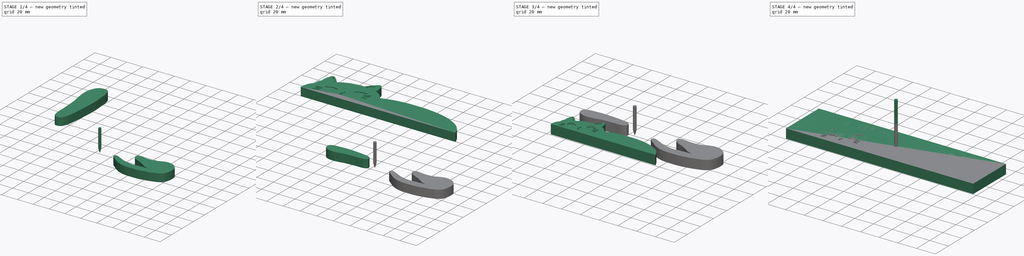
[diagram: build sequence overview — one tinted view per stage of 4, left to right]
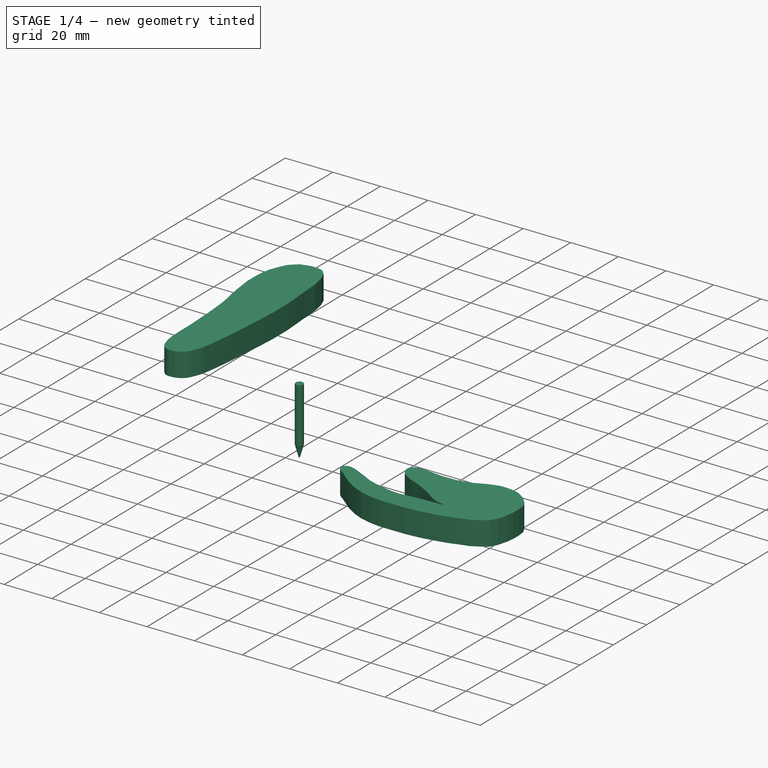
[diagram: stage 1 of 4 — iso view after this stage's code; geometry added in this stage tinted green]
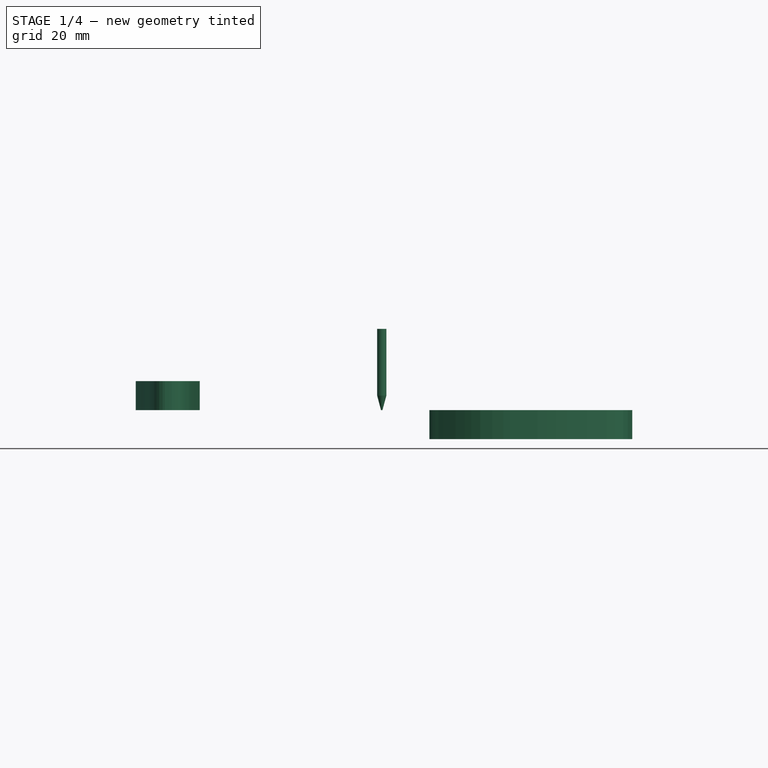
[diagram: stage 1 of 4 — front view after this stage's code; geometry added in this stage tinted green]
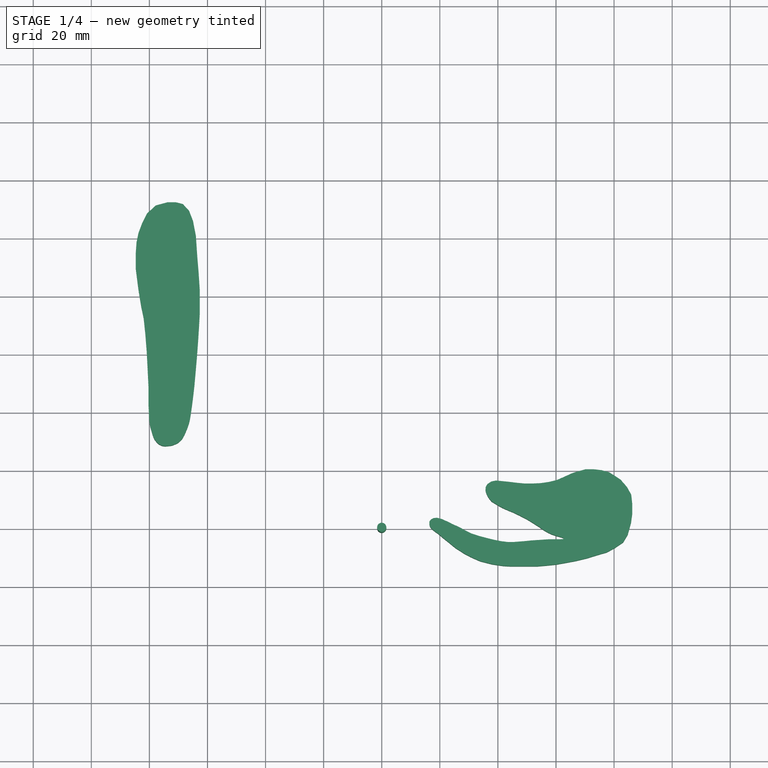
[diagram: stage 1 of 4 — top view after this stage's code; geometry added in this stage tinted green]
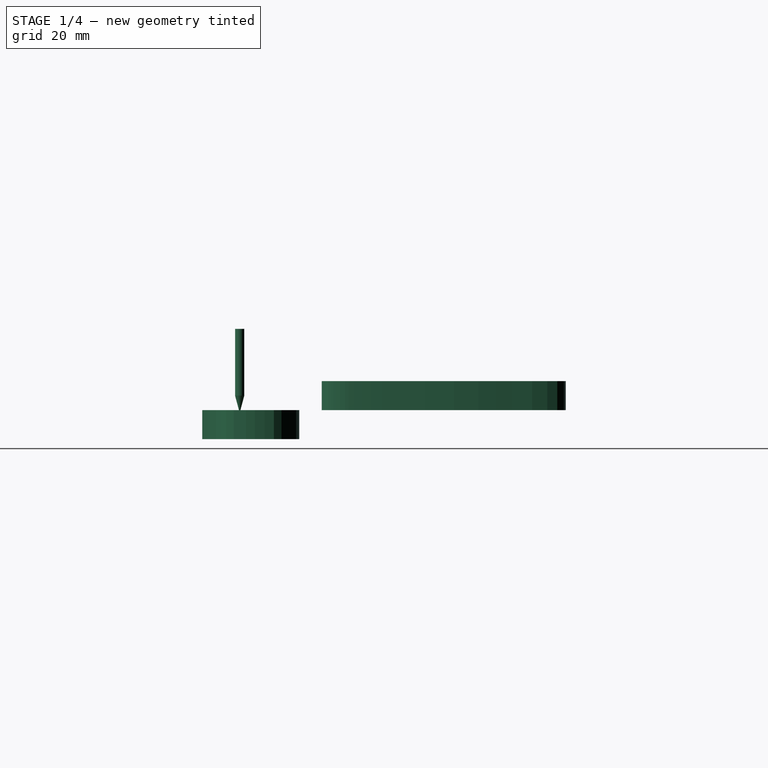
[diagram: stage 1 of 4 — right view after this stage's code; geometry added in this stage tinted green]
FCSTD DOCUMENT  (FreeCAD 1.0R39109 (Git))
Label: 小猫挂钩
License: All rights reserved
objects: Part::FeaturePython×7, Sketcher::SketchObject×6, Path::FeaturePython×6, PartDesign::Pad×5, PartDesign::Body×4, App::DocumentObjectGroup×3, Image::ImagePlane×1, PartDesign::Pocket×1, Part::MultiFuse×1, App::TextDocument×1, App::FeaturePython×1
note: 45 computed .brp shape members not serialized (recipe doc carries the construction recipe); baked Part::Feature solids carry a one-line shape summary decoded from their .brp

FEATURE [Sketcher::SketchObject] Sketch002
  ArcFitTolerance = 1e-06
  AttachmentSupport = -> [XY_Plane002]
  FullyConstrained = false
  MakeInternals = false
  MapMode = 5
  sketch-geometry (53):
    g0: LineSegment StartX=-78.8668 StartY=32.1063 StartZ=0 EndX=-78.3175 EndY=30.7055 EndZ=0
    g1: LineSegment StartX=-78.3175 StartY=30.7055 StartZ=0 EndX=-77.4935 EndY=29.6618 EndZ=0
    g2: LineSegment StartX=-77.4935 StartY=29.6618 StartZ=0 EndX=-76.6146 EndY=28.8378 EndZ=0
    g3: LineSegment StartX=-76.6146 StartY=28.8378 StartZ=0 EndX=-75.4611 EndY=28.3709 EndZ=0
    g4: LineSegment StartX=-75.4611 StartY=28.3709 StartZ=0 EndX=-74.6096 EndY=28.261 EndZ=0
    g5: LineSegment StartX=-74.6096 StartY=28.261 StartZ=0 EndX=-73.2638 EndY=28.3709 EndZ=0
    g6: LineSegment StartX=-73.2638 StartY=28.3709 StartZ=0 EndX=-72.2476 EndY=28.5082 EndZ=0
    g7: LineSegment StartX=-72.2476 StartY=28.5082 StartZ=0 EndX=-71.1764 EndY=28.9202 EndZ=0
    g8: LineSegment StartX=-71.1764 StartY=28.9202 StartZ=0 EndX=-70.2151 EndY=29.3871 EndZ=0
    g9: LineSegment StartX=-70.2151 StartY=29.3871 StartZ=0 EndX=-69.501 EndY=29.9639 EndZ=0
    g10: LineSegment StartX=-69.501 StartY=29.9639 StartZ=0 EndX=-68.8418 EndY=30.5956 EndZ=0
    g11: LineSegment StartX=-68.8418 StartY=30.5956 StartZ=0 EndX=-68.4023 EndY=31.3098 EndZ=0
    g12: LineSegment StartX=-68.4023 StartY=31.3098 StartZ=0 EndX=-67.8805 EndY=32.2436 EndZ=0
    g13: LineSegment StartX=-67.8805 StartY=32.2436 StartZ=0 EndX=-67.4136 EndY=33.3422 EndZ=0
    g14: LineSegment StartX=-67.4136 StartY=33.3422 StartZ=0 EndX=-66.9192 EndY=34.5507 EndZ=0
    g15: LineSegment StartX=-66.9192 StartY=34.5507 StartZ=0 EndX=-66.3424 EndY=36.2536 EndZ=0
    g16: LineSegment StartX=-66.3424 StartY=36.2536 StartZ=0 EndX=-66.0403 EndY=37.572 EndZ=0
    g17: LineSegment StartX=-66.0403 StartY=37.572 StartZ=0 EndX=-65.7066 EndY=39.5869 EndZ=0
    g18: LineSegment StartX=-65.7066 StartY=39.5869 StartZ=0 EndX=-65.3221 EndY=42.3335 EndZ=0
    g19: LineSegment StartX=-65.3221 StartY=42.3335 StartZ=0 EndX=-64.9375 EndY=45.3547 EndZ=0
    g20: LineSegment StartX=-64.9375 StartY=45.3547 StartZ=0 EndX=-64.4971 EndY=49.2089 EndZ=0
    g21: LineSegment StartX=-64.4971 StartY=49.2089 StartZ=0 EndX=-64.1667 EndY=52.8989 EndZ=0
    g22: LineSegment StartX=-64.1667 StartY=52.8989 StartZ=0 EndX=-63.6449 EndY=58.8865 EndZ=0
    g23: LineSegment StartX=-63.6449 StartY=58.8865 StartZ=0 EndX=-63.2725 EndY=63.8804 EndZ=0
    g24: LineSegment StartX=-63.2725 StartY=63.8804 StartZ=0 EndX=-62.9035 EndY=69.4828 EndZ=0
    g25: LineSegment StartX=-62.9035 StartY=69.4828 StartZ=0 EndX=-62.6687 EndY=73.8103 EndZ=0
    g26: LineSegment StartX=-62.6687 StartY=73.8103 StartZ=0 EndX=-62.6687 EndY=82.1883 EndZ=0
    g27: LineSegment StartX=-62.6687 StartY=82.1883 StartZ=0 EndX=-63.0611 EndY=88.1611 EndZ=0
    g28: LineSegment StartX=-63.0611 StartY=88.1611 StartZ=0 EndX=-63.509 EndY=93.5366 EndZ=0
    g29: LineSegment StartX=-63.509 StartY=93.5366 StartZ=0 EndX=-63.9935 EndY=100.701 EndZ=0
    g30: LineSegment StartX=-63.9935 StartY=100.701 StartZ=0 EndX=-64.9966 EndY=105.899 EndZ=0
    g31: LineSegment StartX=-64.9966 StartY=105.899 StartZ=0 EndX=-66.3644 EndY=109.364 EndZ=0
    g32: LineSegment StartX=-66.3644 StartY=109.364 StartZ=0 EndX=-68.4618 EndY=111.644 EndZ=0
    g33: LineSegment StartX=-68.4618 StartY=111.644 StartZ=0 EndX=-70.9239 EndY=112.282 EndZ=0
    g34: LineSegment StartX=-70.9239 StartY=112.282 StartZ=0 EndX=-73.6597 EndY=112.282 EndZ=0
    g35: LineSegment StartX=-73.6597 StartY=112.282 StartZ=0 EndX=-77.7632 EndY=111.188 EndZ=0
    g36: LineSegment StartX=-77.7632 StartY=111.188 StartZ=0 EndX=-80.7725 EndY=108.452 EndZ=0
    g37: LineSegment StartX=-80.7725 StartY=108.452 StartZ=0 EndX=-82.4139 EndY=105.261 EndZ=0
    g38: LineSegment StartX=-82.4139 StartY=105.261 StartZ=0 EndX=-83.7818 EndY=101.613 EndZ=0
    g39: LineSegment StartX=-83.7818 StartY=101.613 StartZ=0 EndX=-84.4201 EndY=98.5125 EndZ=0
    g40: LineSegment StartX=-84.4201 StartY=98.5125 StartZ=0 EndX=-84.6937 EndY=94.7737 EndZ=0
    g41: LineSegment StartX=-84.6937 StartY=94.7737 StartZ=0 EndX=-84.6937 EndY=89.4847 EndZ=0
    g42: LineSegment StartX=-84.6937 StartY=89.4847 StartZ=0 EndX=-83.778 EndY=82.3493 EndZ=0
    g43: LineSegment StartX=-83.778 StartY=82.3493 StartZ=0 EndX=-82.8661 EndY=76.6955 EndZ=0
    g44: LineSegment StartX=-82.8661 StartY=76.6955 StartZ=0 EndX=-81.9542 EndY=72.3184 EndZ=0
    g45: LineSegment StartX=-81.9542 StartY=72.3184 StartZ=0 EndX=-81.4071 EndY=67.1206 EndZ=0
    g46: LineSegment StartX=-81.4071 StartY=67.1206 StartZ=0 EndX=-80.9299 EndY=61.0582 EndZ=0
    g47: LineSegment StartX=-80.9299 StartY=61.0582 StartZ=0 EndX=-80.6243 EndY=55.2512 EndZ=0
    g48: LineSegment StartX=-80.6243 StartY=55.2512 StartZ=0 EndX=-80.3186 EndY=48.9551 EndZ=0
    g49: LineSegment StartX=-80.3186 StartY=48.9551 StartZ=0 EndX=-80.3186 EndY=42.7591 EndZ=0
    g50: LineSegment StartX=-80.3186 StartY=42.7591 StartZ=0 EndX=-80.0738 EndY=37.5633 EndZ=0
    g51: LineSegment StartX=-80.0738 StartY=37.5633 StartZ=0 EndX=-79.7445 EndY=35.1976 EndZ=0
    g52: LineSegment StartX=-79.7445 StartY=35.1976 StartZ=0 EndX=-78.8668 EndY=32.1063 EndZ=0
  constraints (57):
    c: Coincident(g0,g1)
    c: Coincident(g1,g2)
    c: Coincident(g2,g3)
    c: Coincident(g3,g4)
    c: Coincident(g4,g5)
    c: Coincident(g5,g6)
    c: Coincident(g6,g7)
    c: Coincident(g7,g8)
    c: Coincident(g8,g9)
    c: Coincident(g9,g10)
    c: Coincident(g10,g11)
    c: Coincident(g11,g12)
    c: Coincident(g12,g13)
    c: Coincident(g13,g14)
    c: Coincident(g14,g15)
    c: Coincident(g15,g16)
    c: Coincident(g16,g17)
    c: Coincident(g17,g18)
    c: Coincident(g18,g19)
    c: Coincident(g19,g20)
    c: Coincident(g20,g21)
    c: Coincident(g21,g22)
    c: Coincident(g22,g23)
    c: Coincident(g23,g24)
    c: Coincident(g24,g25)
    c: Coincident(g25,g26)
    c: Vertical(g26)
    c: Coincident(g26,g27)
    c: Coincident(g27,g28)
    c: Coincident(g28,g29)
    c: Coincident(g29,g30)
    c: Coincident(g30,g31)
    c: Coincident(g31,g32)
    c: Coincident(g32,g33)
    c: Coincident(g33,g34)
    c: Horizontal(g34)
    c: Coincident(g34,g35)
    c: Coincident(g35,g36)
    c: Coincident(g36,g37)
    c: Coincident(g37,g38)
    c: Coincident(g38,g39)
    c: Coincident(g39,g40)
    c: Coincident(g40,g41)
    c: Vertical(g41)
    c: Coincident(g41,g42)
    c: Coincident(g42,g43)
    c: Coincident(g43,g44)
    c: Coincident(g44,g45)
    c: Coincident(g45,g46)
    c: Coincident(g46,g47)
    c: Coincident(g47,g48)
    c: Coincident(g48,g49)
    c: Vertical(g49)
    c: Coincident(g49,g50)
    c: Coincident(g50,g51)
    c: Coincident(g51,g52)
    c: Coincident(g52,g0)
FEATURE [PartDesign::Pad] Pad002
  Direction = (0,0,1)
  Length = 10
  Length2 = 10
  Profile = -> Sketch002
  ReferenceAxis = -> Sketch002 [N_Axis]
  Refine = true
  Suppressed = false
  Type = 0
FEATURE [PartDesign::Body] Body002  label="OriginForwardLeg"
  AllowCompound = false
  Group = -> [Sketch002,Pad002]
  Origin = -> Origin002
  Placement = pos=(0,0,10) rot=(0,0,1;0rad)
  Tip = -> Pad002
FEATURE [Sketcher::SketchObject] Sketch003
  ArcFitTolerance = 1e-06
  AttachmentSupport = -> [XY_Plane003]
  FullyConstrained = false
  MakeInternals = false
  MapMode = 5
  sketch-geometry (98):
    g0: LineSegment StartX=-9.11129 StartY=27.4137 StartZ=0 EndX=-8 EndY=26.6734 EndZ=0
    g1: LineSegment StartX=-8 StartY=26.6734 StartZ=0 EndX=-7 EndY=26.2824 EndZ=0
    g2: LineSegment StartX=-7 StartY=26.2824 StartZ=0 EndX=-5.44963 EndY=26.2113 EndZ=0
    g3: LineSegment StartX=-5.44963 StartY=26.2113 StartZ=0 EndX=-4.34771 EndY=26.4601 EndZ=0
    g4: LineSegment StartX=-4.34771 StartY=26.4601 StartZ=0 EndX=-3 EndY=27 EndZ=0
    g5: LineSegment StartX=-3 StartY=27 StartZ=0 EndX=-2 EndY=27.4199 EndZ=0
    g6: LineSegment StartX=-2 StartY=27.4199 StartZ=0 EndX=-0.579866 EndY=28.4151 EndZ=0
    g7: LineSegment StartX=-0.579866 StartY=28.4151 StartZ=0 EndX=1 EndY=29.7303 EndZ=0
    g8: LineSegment StartX=1 StartY=29.7303 StartZ=0 EndX=3 EndY=33 EndZ=0
    g9: LineSegment StartX=3 StartY=33 StartZ=0 EndX=4.6809 EndY=36 EndZ=0
    g10: LineSegment StartX=4.6809 StartY=36 StartZ=0 EndX=6 EndY=39 EndZ=0
    g11: LineSegment StartX=6 StartY=39 StartZ=0 EndX=7.46383 EndY=42.6086 EndZ=0
    g12: LineSegment StartX=7.46383 StartY=42.6086 StartZ=0 EndX=9 EndY=45.7366 EndZ=0
    g13: LineSegment StartX=9 StartY=45.7366 StartZ=0 EndX=11 EndY=49.6466 EndZ=0
    g14: LineSegment StartX=11 StartY=49.6466 StartZ=0 EndX=13.4711 EndY=53.6988 EndZ=0
    g15: LineSegment StartX=13.4711 StartY=53.6988 StartZ=0 EndX=15.7282 EndY=57.2035 EndZ=0
    g16: LineSegment StartX=15.7282 StartY=57.2035 StartZ=0 EndX=17.3989 EndY=59.5495 EndZ=0
    g17: LineSegment StartX=17.3989 StartY=59.5495 StartZ=0 EndX=19 EndY=62.3221 EndZ=0
    g18: LineSegment StartX=19 StartY=62.3221 StartZ=0 EndX=20 EndY=64.6325 EndZ=0
    g19: LineSegment StartX=20 StartY=64.6325 StartZ=0 EndX=20.7757 EndY=67 EndZ=0
    g20: LineSegment StartX=20.7757 StartY=67 StartZ=0 EndX=21.6288 EndY=70 EndZ=0
    g21: LineSegment StartX=21.6288 StartY=70 StartZ=0 EndX=22 EndY=71 EndZ=0
    g22: LineSegment StartX=22 StartY=71 StartZ=0 EndX=22.5885 EndY=70.7464 EndZ=0
    g23: LineSegment StartX=22.5885 StartY=70.7464 StartZ=0 EndX=22.6596 EndY=69.289 EndZ=0
    g24: LineSegment StartX=22.6596 StartY=69.289 StartZ=0 EndX=22.6596 EndY=67 EndZ=0
    g25: LineSegment StartX=22.6596 StartY=67 StartZ=0 EndX=22.6596 EndY=63 EndZ=0
    g26: LineSegment StartX=22.6596 StartY=63 StartZ=0 EndX=23 EndY=58 EndZ=0
    g27: LineSegment StartX=23 StartY=58 StartZ=0 EndX=23.3705 EndY=52.3693 EndZ=0
    g28: LineSegment StartX=23.3705 StartY=52.3693 StartZ=0 EndX=23.7293 EndY=49 EndZ=0
    g29: LineSegment StartX=23.7293 StartY=49 StartZ=0 EndX=24 EndY=45.7043 EndZ=0
    g30: LineSegment StartX=24 StartY=45.7043 StartZ=0 EndX=24.2624 EndY=42.363 EndZ=0
    g31: LineSegment StartX=24.2624 StartY=42.363 StartZ=0 EndX=24.2624 EndY=39 EndZ=0
    g32: LineSegment StartX=24.2624 StartY=39 StartZ=0 EndX=23.761 EndY=35 EndZ=0
    g33: LineSegment StartX=23.761 StartY=35 StartZ=0 EndX=23 EndY=31.2174 EndZ=0
    g34: LineSegment StartX=23 StartY=31.2174 StartZ=0 EndX=22.2326 EndY=28 EndZ=0
    g35: LineSegment StartX=22.2326 StartY=28 StartZ=0 EndX=20.7667 EndY=22.4431 EndZ=0
    g36: LineSegment StartX=20.7667 StartY=22.4431 StartZ=0 EndX=19.4208 EndY=18.3186 EndZ=0
    g37: LineSegment StartX=19.4208 StartY=18.3186 StartZ=0 EndX=17.6408 EndY=14.6717 EndZ=0
    g38: LineSegment StartX=17.6408 StartY=14.6717 StartZ=0 EndX=15.6002 EndY=11 EndZ=0
    g39: LineSegment StartX=15.6002 StartY=11 StartZ=0 EndX=14 EndY=7.29103 EndZ=0
    g40: LineSegment StartX=14 StartY=7.29103 StartZ=0 EndX=12.4743 EndY=4.29535 EndZ=0
    g41: LineSegment StartX=12.4743 StartY=4.29535 StartZ=0 EndX=11 EndY=1 EndZ=0
    g42: LineSegment StartX=11 StartY=1 StartZ=0 EndX=10.3415 EndY=-1.62986 EndZ=0
    g43: LineSegment StartX=10.3415 StartY=-1.62986 StartZ=0 EndX=10.5152 EndY=-3.54014 EndZ=0
    g44: LineSegment StartX=10.5152 StartY=-3.54014 StartZ=0 EndX=11.2967 EndY=-5 EndZ=0
    g45: LineSegment StartX=11.2967 StartY=-5 StartZ=0 EndX=12.4689 EndY=-6 EndZ=0
    g46: LineSegment StartX=12.4689 StartY=-6 StartZ=0 EndX=14 EndY=-6 EndZ=0
    g47: LineSegment StartX=14 StartY=-6 StartZ=0 EndX=15.4212 EndY=-5.66751 EndZ=0
    g48: LineSegment StartX=15.4212 StartY=-5.66751 StartZ=0 EndX=17 EndY=-4.32163 EndZ=0
    g49: LineSegment StartX=17 StartY=-4.32163 StartZ=0 EndX=18.33 EndY=-2.67183 EndZ=0
    g50: LineSegment StartX=18.33 StartY=-2.67183 StartZ=0 EndX=19.6325 EndY=-0.761544 EndZ=0
    g51: LineSegment StartX=19.6325 StartY=-0.761544 StartZ=0 EndX=22 EndY=2 EndZ=0
    g52: LineSegment StartX=22 StartY=2 StartZ=0 EndX=25 EndY=5.7508 EndZ=0
    g53: LineSegment StartX=25 StartY=5.7508 StartZ=0 EndX=27.6644 EndY=9 EndZ=0
    g54: LineSegment StartX=27.6644 StartY=9 StartZ=0 EndX=31 EndY=14.2169 EndZ=0
    g55: LineSegment StartX=31 StartY=14.2169 StartZ=0 EndX=32.9639 EndY=17.9475 EndZ=0
    g56: LineSegment StartX=32.9639 StartY=17.9475 StartZ=0 EndX=35.258 EndY=23.1686 EndZ=0
    g57: LineSegment StartX=35.258 StartY=23.1686 StartZ=0 EndX=36.9984 EndY=30 EndZ=0
    g58: LineSegment StartX=36.9984 StartY=30 StartZ=0 EndX=37.9477 EndY=36.3797 EndZ=0
    g59: LineSegment StartX=37.9477 StartY=36.3797 StartZ=0 EndX=38.1594 EndY=40.2032 EndZ=0
    g60: LineSegment StartX=38.1594 StartY=40.2032 StartZ=0 EndX=38.1594 EndY=44.5882 EndZ=0
    g61: LineSegment StartX=38.1594 StartY=44.5882 StartZ=0 EndX=38.1594 EndY=49.798 EndZ=0
    g62: LineSegment StartX=38.1594 StartY=49.798 StartZ=0 EndX=38.1594 EndY=56.0308 EndZ=0
    g63: LineSegment StartX=38.1594 StartY=56.0308 StartZ=0 EndX=37.726 EndY=61.067 EndZ=0
    g64: LineSegment StartX=37.726 StartY=61.067 StartZ=0 EndX=37.1616 EndY=66.7544 EndZ=0
    g65: LineSegment StartX=37.1616 StartY=66.7544 StartZ=0 EndX=36.0291 EndY=73.0667 EndZ=0
    g66: LineSegment StartX=36.0291 StartY=73.0667 StartZ=0 EndX=35.074 EndY=78.1463 EndZ=0
    g67: LineSegment StartX=35.074 StartY=78.1463 StartZ=0 EndX=33.6106 EndY=84.2376 EndZ=0
    g68: LineSegment StartX=33.6106 StartY=84.2376 StartZ=0 EndX=31.195 EndY=92.1607 EndZ=0
    g69: LineSegment StartX=31.195 StartY=92.1607 StartZ=0 EndX=30.2288 EndY=95.6392 EndZ=0
    g70: LineSegment StartX=30.2288 StartY=95.6392 StartZ=0 EndX=27.8132 EndY=100.18 EndZ=0
    g71: LineSegment StartX=27.8132 StartY=100.18 StartZ=0 EndX=24.4314 EndY=105.205 EndZ=0
    g72: LineSegment StartX=24.4314 StartY=105.205 StartZ=0 EndX=20.0834 EndY=107.814 EndZ=0
    g73: LineSegment StartX=20.0834 StartY=107.814 StartZ=0 EndX=13.0299 EndY=109.746 EndZ=0
    g74: LineSegment StartX=13.0299 StartY=109.746 StartZ=0 EndX=7.92769 EndY=110.423 EndZ=0
    g75: LineSegment StartX=7.92769 StartY=110.423 StartZ=0 EndX=2.35975 EndY=110.423 EndZ=0
    g76: LineSegment StartX=2.35975 StartY=110.423 StartZ=0 EndX=-2.94305 EndY=109.839 EndZ=0
    g77: LineSegment StartX=-2.94305 StartY=109.839 StartZ=0 EndX=-7.30921 EndY=107.392 EndZ=0
    g78: LineSegment StartX=-7.30921 StartY=107.392 StartZ=0 EndX=-11.4984 EndY=103.786 EndZ=0
    g79: LineSegment StartX=-11.4984 StartY=103.786 StartZ=0 EndX=-13.7786 EndY=100.339 EndZ=0
    g80: LineSegment StartX=-13.7786 StartY=100.339 StartZ=0 EndX=-15.7407 EndY=97.2103 EndZ=0
    g81: LineSegment StartX=-15.7407 StartY=97.2103 StartZ=0 EndX=-16.9603 EndY=92.915 EndZ=0
    g82: LineSegment StartX=-16.9603 StartY=92.915 StartZ=0 EndX=-17.4906 EndY=88.2486 EndZ=0
    g83: LineSegment StartX=-17.4906 StartY=88.2486 StartZ=0 EndX=-17.4906 EndY=83.6751 EndZ=0
    g84: LineSegment StartX=-17.4906 StartY=83.6751 StartZ=0 EndX=-16.2178 EndY=78.9556 EndZ=0
    g85: LineSegment StartX=-16.2178 StartY=78.9556 StartZ=0 EndX=-14.9982 EndY=75.3497 EndZ=0
    g86: LineSegment StartX=-14.9982 StartY=75.3497 StartZ=0 EndX=-13.1422 EndY=71.3196 EndZ=0
    g87: LineSegment StartX=-13.1422 StartY=71.3196 StartZ=0 EndX=-11.2842 EndY=67.0551 EndZ=0
    g88: LineSegment StartX=-11.2842 StartY=67.0551 StartZ=0 EndX=-10.2236 EndY=62.6007 EndZ=0
    g89: LineSegment StartX=-10.2236 StartY=62.6007 StartZ=0 EndX=-9.53424 EndY=58.0403 EndZ=0
    g90: LineSegment StartX=-9.53424 StartY=58.0403 StartZ=0 EndX=-9.32212 EndY=53.3738 EndZ=0
    g91: LineSegment StartX=-9.32212 StartY=53.3738 StartZ=0 EndX=-9.32212 EndY=48.6779 EndZ=0
    g92: LineSegment StartX=-9.32212 StartY=48.6779 StartZ=0 EndX=-9.6946 EndY=44.4887 EndZ=0
    g93: LineSegment StartX=-9.6946 StartY=44.4887 StartZ=0 EndX=-10.2249 EndY=40.1934 EndZ=0
    g94: LineSegment StartX=-10.2249 StartY=40.1934 StartZ=0 EndX=-10.7021 EndY=35.58 EndZ=0
    g95: LineSegment StartX=-10.7021 StartY=35.58 StartZ=0 EndX=-11.0203 EndY=32.1862 EndZ=0
    g96: LineSegment StartX=-11.0203 StartY=32.1862 StartZ=0 EndX=-10.49 EndY=29.6408 EndZ=0
    g97: LineSegment StartX=-10.49 StartY=29.6408 StartZ=0 EndX=-9.11129 EndY=27.4137 EndZ=0
  constraints (108):
    c: Coincident(g0,g1)
    c: Coincident(g1,g2)
    c: Coincident(g2,g3)
    c: Coincident(g3,g4)
    c: Coincident(g4,g5)
    c: Coincident(g5,g6)
    c: Coincident(g6,g7)
    c: Coincident(g7,g8)
    c: Coincident(g8,g9)
    c: Coincident(g9,g10)
    c: Coincident(g10,g11)
    c: Coincident(g11,g12)
    c: Coincident(g12,g13)
    c: Coincident(g13,g14)
    c: Coincident(g14,g15)
    c: Coincident(g15,g16)
    c: Coincident(g16,g17)
    c: Coincident(g17,g18)
    c: Coincident(g18,g19)
    c: Coincident(g19,g20)
    c: Coincident(g20,g21)
    c: Coincident(g21,g22)
    c: Coincident(g22,g23)
    c: Coincident(g23,g24)
    c: Vertical(g24)
    c: Coincident(g24,g25)
    c: Vertical(g25)
    c: Coincident(g25,g26)
    c: Coincident(g26,g27)
    c: Coincident(g27,g28)
    c: Coincident(g28,g29)
    c: Coincident(g29,g30)
    c: Coincident(g30,g31)
    c: Vertical(g31)
    c: Coincident(g31,g32)
    c: Coincident(g32,g33)
    c: Coincident(g33,g34)
    c: Coincident(g34,g35)
    c: Coincident(g35,g36)
    c: Coincident(g36,g37)
    c: Coincident(g37,g38)
    c: Coincident(g38,g39)
    c: Coincident(g39,g40)
    c: Coincident(g40,g41)
    c: Coincident(g41,g42)
    c: Coincident(g42,g43)
    c: Coincident(g43,g44)
    c: Coincident(g44,g45)
    c: Coincident(g45,g46)
    c: Horizontal(g46)
    c: Coincident(g46,g47)
    c: Coincident(g47,g48)
    c: Coincident(g48,g49)
    c: Coincident(g49,g50)
    c: Coincident(g50,g51)
    c: Coincident(g51,g52)
    c: Coincident(g52,g53)
    c: Coincident(g53,g54)
    c: Coincident(g54,g55)
    c: Coincident(g55,g56)
    c: Coincident(g56,g57)
    c: Coincident(g57,g58)
    c: Coincident(g58,g59)
    c: Coincident(g59,g60)
    c: Vertical(g60)
    c: Coincident(g60,g61)
    c: Vertical(g61)
    c: Coincident(g61,g62)
    c: Vertical(g62)
    c: Coincident(g62,g63)
    c: Coincident(g63,g64)
    c: Coincident(g64,g65)
    c: Coincident(g65,g66)
    c: Coincident(g66,g67)
    c: Coincident(g67,g68)
    c: Coincident(g68,g69)
    c: Coincident(g69,g70)
    c: Coincident(g70,g71)
    c: Coincident(g71,g72)
    c: Coincident(g72,g73)
    c: Coincident(g73,g74)
    c: Coincident(g74,g75)
    c: Horizontal(g75)
    c: Coincident(g75,g76)
    c: Coincident(g76,g77)
    c: Coincident(g77,g78)
    c: Coincident(g78,g79)
    c: Coincident(g79,g80)
    c: Coincident(g80,g81)
    c: Coincident(g81,g82)
    c: Coincident(g82,g83)
    c: Vertical(g83)
    c: Coincident(g83,g84)
    c: Coincident(g84,g85)
    c: Coincident(g85,g86)
    c: Coincident(g86,g87)
    c: Coincident(g87,g88)
    c: Coincident(g88,g89)
    c: Coincident(g89,g90)
    c: Coincident(g90,g91)
    c: Vertical(g91)
    c: Coincident(g91,g92)
    c: Coincident(g92,g93)
    c: Coincident(g93,g94)
    c: Coincident(g94,g95)
    c: Coincident(g95,g96)
    c: Coincident(g96,g97)
    c: Coincident(g97,g0)
FEATURE [PartDesign::Pad] Pad003
  Direction = (0,0,1)
  Length = 10
  Length2 = 10
  Profile = -> Sketch003
  ReferenceAxis = -> Sketch003 [N_Axis]
  Refine = true
  Suppressed = false
  Type = 0
FEATURE [Part::FeaturePython] Clone002  label="OriginBackLeg001"  # Draft clone (typed FeaturePython)
  AttacherType = Attacher::AttachEngine3D
  Fuse = false
  Objects = -> [Body003]
  Placement = pos=(20,10,-10) rot=(0,0,1;4.71239rad)
  Scale = (0.6,0.6,1)
FEATURE [Path::FeaturePython] _175mm  label="3175mm001"  # Path/CAM operation (typed FeaturePython)
  HorizFeed = 5
  HorizRapid = 0
  SpindleDir = 0
  SpindleSpeed = 10000
  Tool = -> ToolBit001
  ToolNumber = 2
  VertFeed = 5
  VertRapid = 0
  expr: HorizRapid = SetupSheet.HorizRapid
  expr: VertRapid = SetupSheet.VertRapid
FEATURE [Part::FeaturePython] ToolBit  label="30degree_Vbit"  # Path/CAM toolbit (typed FeaturePython)
  BitPropertyNames = Chipload | CuttingEdgeAngle | CuttingEdgeHeight | Diameter | Flutes | Length | Material | ShankDiameter | TipDiameter
  BitShape = <path>
  Chipload = 0
  CuttingEdgeAngle = 30
  CuttingEdgeHeight = 5
  Diameter = 3.17
  File = <userpath>/.local/share/FreeCAD/Macro/Bit/30degree_Vbit.fctb
  Flutes = 0
  Length = 28
  Material = 0
  ShankDiameter = 3.17
  ShapeName = v_bit
  TipDiameter = 0.5
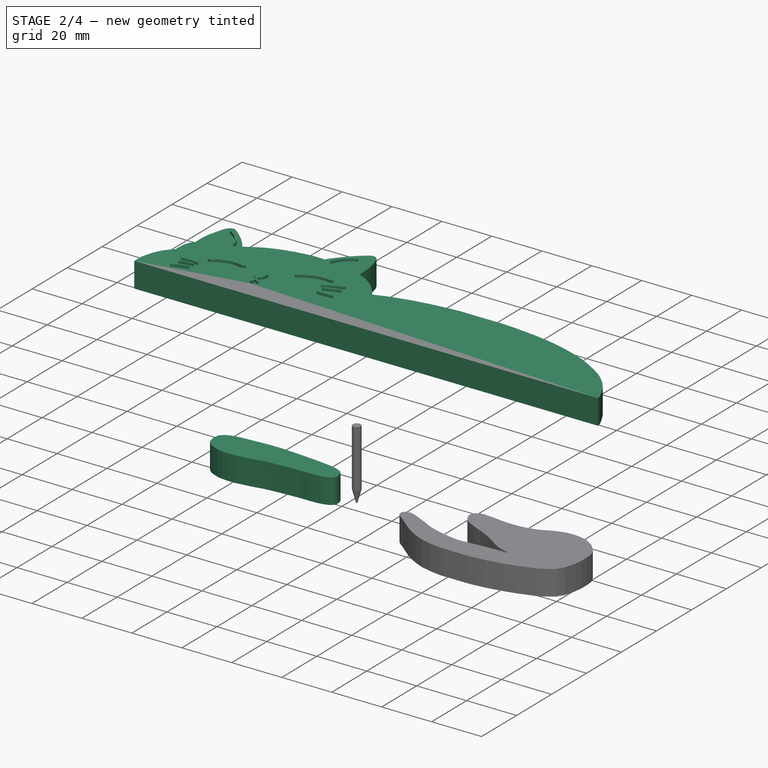
[diagram: stage 2 of 4 — iso view after this stage's code; geometry added in this stage tinted green]
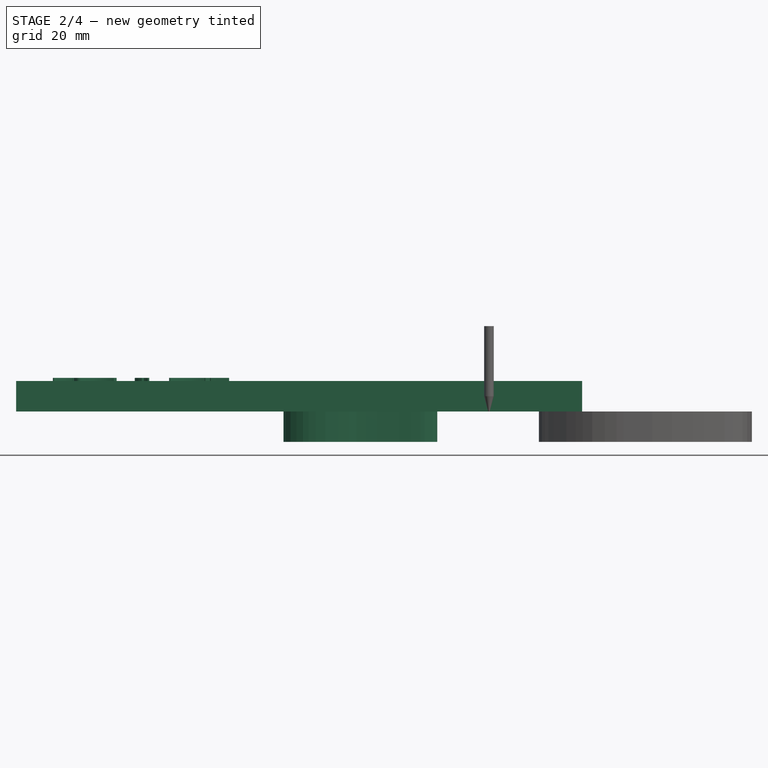
[diagram: stage 2 of 4 — front view after this stage's code; geometry added in this stage tinted green]
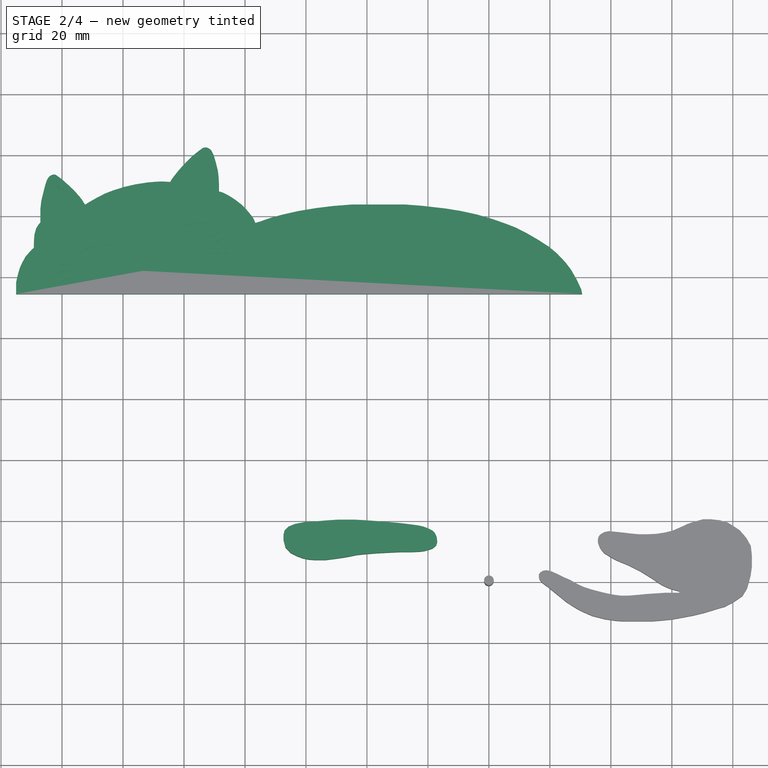
[diagram: stage 2 of 4 — top view after this stage's code; geometry added in this stage tinted green]
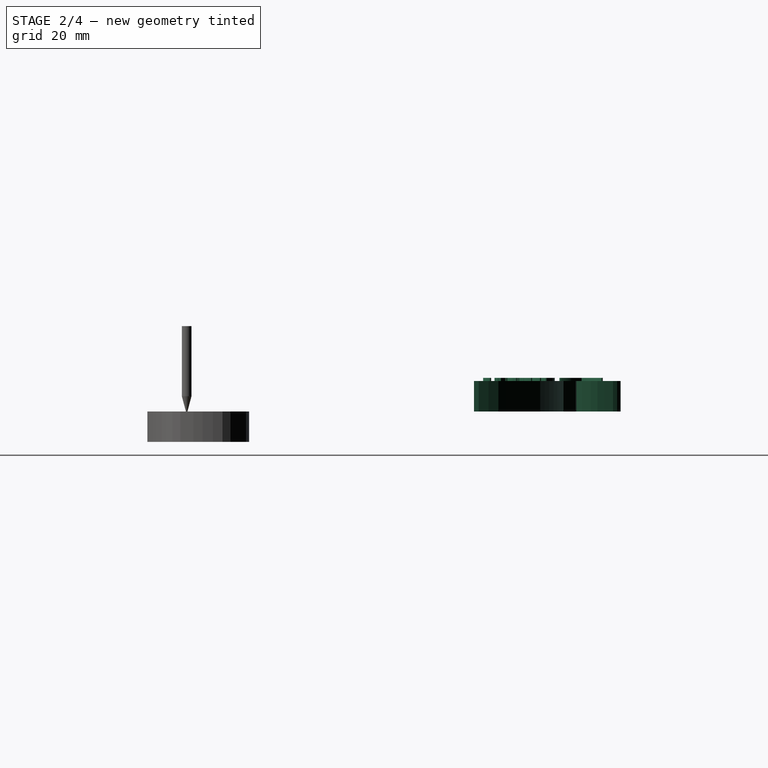
[diagram: stage 2 of 4 — right view after this stage's code; geometry added in this stage tinted green]
FEATURE [PartDesign::Body] Body  label="BasePanel"
  AllowCompound = false
  Group = -> [Sketch,Pad]
  Origin = -> Origin
  Placement = pos=(0,0,-10) rot=(0,0,1;0rad)
  Tip = -> Pad
FEATURE [Sketcher::SketchObject] Sketch001
  ArcFitTolerance = 1e-06
  AttachmentSupport = -> [XY_Plane001]
  FullyConstrained = false
  MakeInternals = false
  MapMode = 5
  sketch-geometry (100):
    g0: LineSegment StartX=-155.061 StartY=94.2278 StartZ=0 EndX=30.5872 EndY=94.2278 EndZ=0
    g1: LineSegment StartX=30.5872 StartY=94.2278 StartZ=0 EndX=30.2936 EndY=95.7762 EndZ=0
    g2: LineSegment StartX=30.2936 StartY=95.7762 StartZ=0 EndX=28.7523 EndY=99.0055 EndZ=0
    g3: LineSegment StartX=28.7523 StartY=99.0055 StartZ=0 EndX=26.9175 EndY=102.235 EndZ=0
    g4: LineSegment StartX=26.9175 StartY=102.235 StartZ=0 EndX=25.0093 EndY=104.73 EndZ=0
    g5: LineSegment StartX=25.0093 StartY=104.73 StartZ=0 EndX=22.0736 EndY=107.739 EndZ=0
    g6: LineSegment StartX=22.0736 StartY=107.739 StartZ=0 EndX=19.7984 EndY=109.647 EndZ=0
    g7: LineSegment StartX=19.7984 StartY=109.647 StartZ=0 EndX=16.4074 EndY=111.86 EndZ=0
    g8: LineSegment StartX=16.4074 StartY=111.86 StartZ=0 EndX=12.224 EndY=114.282 EndZ=0
    g9: LineSegment StartX=12.224 StartY=114.282 StartZ=0 EndX=8.92131 EndY=115.97 EndZ=0
    g10: LineSegment StartX=8.92131 StartY=115.97 StartZ=0 EndX=5.32505 EndY=117.365 EndZ=0
    g11: LineSegment StartX=5.32505 StartY=117.365 StartZ=0 EndX=0.921472 EndY=118.906 EndZ=0
    g12: LineSegment StartX=0.921472 StartY=118.906 StartZ=0 EndX=-4.00667 EndY=120.315 EndZ=0
    g13: LineSegment StartX=-4.00667 StartY=120.315 StartZ=0 EndX=-9.36436 EndY=121.489 EndZ=0
    g14: LineSegment StartX=-9.36436 StartY=121.489 StartZ=0 EndX=-14.4285 EndY=122.296 EndZ=0
    g15: LineSegment StartX=-14.4285 StartY=122.296 StartZ=0 EndX=-22.0887 EndY=123.173 EndZ=0
    g16: LineSegment StartX=-22.0887 StartY=123.173 StartZ=0 EndX=-27.4055 EndY=123.576 EndZ=0
    g17: LineSegment StartX=-27.4055 StartY=123.576 StartZ=0 EndX=-32.1584 EndY=123.576 EndZ=0
    g18: LineSegment StartX=-32.1584 StartY=123.576 StartZ=0 EndX=-39.5852 EndY=123.576 EndZ=0
    g19: LineSegment StartX=-39.5852 StartY=123.576 StartZ=0 EndX=-44.9826 EndY=123.576 EndZ=0
    g20: LineSegment StartX=-44.9826 StartY=123.576 StartZ=0 EndX=-51.105 EndY=123.093 EndZ=0
    g21: LineSegment StartX=-51.105 StartY=123.093 StartZ=0 EndX=-56.6635 EndY=122.409 EndZ=0
    g22: LineSegment StartX=-56.6635 StartY=122.409 StartZ=0 EndX=-62.5039 EndY=121.442 EndZ=0
    g23: LineSegment StartX=-62.5039 StartY=121.442 StartZ=0 EndX=-67.9984 EndY=120.187 EndZ=0
    g24: LineSegment StartX=-67.9984 StartY=120.187 StartZ=0 EndX=-71.7846 EndY=119.14 EndZ=0
    g25: LineSegment StartX=-71.7846 StartY=119.14 StartZ=0 EndX=-74.7652 EndY=118.093 EndZ=0
    g26: LineSegment StartX=-74.7652 StartY=118.093 StartZ=0 EndX=-76.5778 EndY=117.529 EndZ=0
    g27: LineSegment StartX=-76.5778 StartY=117.529 StartZ=0 EndX=-77.2222 EndY=119.019 EndZ=0
    g28: LineSegment StartX=-77.2222 StartY=119.019 StartZ=0 EndX=-78.2695 EndY=120.429 EndZ=0
    g29: LineSegment StartX=-78.2695 StartY=120.429 StartZ=0 EndX=-79.5584 EndY=121.96 EndZ=0
    g30: LineSegment StartX=-79.5584 StartY=121.96 StartZ=0 EndX=-81.0543 EndY=123.498 EndZ=0
    g31: LineSegment StartX=-81.0543 StartY=123.498 StartZ=0 EndX=-83.3099 EndY=125.23 EndZ=0
    g32: LineSegment StartX=-83.3099 StartY=125.23 StartZ=0 EndX=-85.4447 EndY=126.6 EndZ=0
    g33: LineSegment StartX=-85.4447 StartY=126.6 StartZ=0 EndX=-87.2975 EndY=127.526 EndZ=0
    g34: LineSegment StartX=-87.2975 StartY=127.526 StartZ=0 EndX=-88.5059 EndY=127.849 EndZ=0
    g35: LineSegment StartX=-88.5059 StartY=127.849 StartZ=0 EndX=-88.5059 EndY=129.655 EndZ=0
    g36: LineSegment StartX=-88.5059 StartY=129.655 StartZ=0 EndX=-88.6335 EndY=132.528 EndZ=0
    g37: LineSegment StartX=-88.6335 StartY=132.528 StartZ=0 EndX=-88.8988 EndY=134.717 EndZ=0
    g38: LineSegment StartX=-88.8988 StartY=134.717 StartZ=0 EndX=-89.4753 EndY=137.023 EndZ=0
    g39: LineSegment StartX=-89.4753 StartY=137.023 StartZ=0 EndX=-90.249 EndY=139.809 EndZ=0
    g40: LineSegment StartX=-90.249 StartY=139.809 StartZ=0 EndX=-90.9343 EndY=141.157 EndZ=0
    g41: LineSegment StartX=-90.9343 StartY=141.157 StartZ=0 EndX=-91.4869 EndY=141.754 EndZ=0
    g42: LineSegment StartX=-91.4869 StartY=141.754 StartZ=0 EndX=-92.1722 EndY=142.13 EndZ=0
    g43: LineSegment StartX=-92.1722 StartY=142.13 StartZ=0 EndX=-92.7911 EndY=142.329 EndZ=0
    g44: LineSegment StartX=-92.7911 StartY=142.329 StartZ=0 EndX=-93.6974 EndY=142.196 EndZ=0
    g45: LineSegment StartX=-93.6974 StartY=142.196 StartZ=0 EndX=-95.0238 EndY=141.268 EndZ=0
    g46: LineSegment StartX=-95.0238 StartY=141.268 StartZ=0 EndX=-97.2343 EndY=139.499 EndZ=0
    g47: LineSegment StartX=-97.2343 StartY=139.499 StartZ=0 EndX=-99.3786 EndY=137.399 EndZ=0
    g48: LineSegment StartX=-99.3786 StartY=137.399 StartZ=0 EndX=-101.633 EndY=134.923 EndZ=0
    g49: LineSegment StartX=-101.633 StartY=134.923 StartZ=0 EndX=-103.142 EndY=133.039 EndZ=0
    g50: LineSegment StartX=-103.142 StartY=133.039 StartZ=0 EndX=-104.137 EndY=131.691 EndZ=0
    g51: LineSegment StartX=-104.137 StartY=131.691 StartZ=0 EndX=-104.468 EndY=130.983 EndZ=0
    g52: LineSegment StartX=-104.468 StartY=130.983 StartZ=0 EndX=-105.596 EndY=131.05 EndZ=0
    g53: LineSegment StartX=-105.596 StartY=131.05 StartZ=0 EndX=-107.32 EndY=131.138 EndZ=0
    g54: LineSegment StartX=-107.32 StartY=131.138 StartZ=0 EndX=-109.531 EndY=131.028 EndZ=0
    g55: LineSegment StartX=-109.531 StartY=131.028 StartZ=0 EndX=-111.984 EndY=130.807 EndZ=0
    g56: LineSegment StartX=-111.984 StartY=130.807 StartZ=0 EndX=-115.839 EndY=130.208 EndZ=0
    g57: LineSegment StartX=-115.839 StartY=130.208 StartZ=0 EndX=-119.552 EndY=129.368 EndZ=0
    g58: LineSegment StartX=-119.552 StartY=129.368 StartZ=0 EndX=-123.2 EndY=128.218 EndZ=0
    g59: LineSegment StartX=-123.2 StartY=128.218 StartZ=0 EndX=-125.919 EndY=127.179 EndZ=0
    g60: LineSegment StartX=-125.919 StartY=127.179 StartZ=0 EndX=-128.381 EndY=125.912 EndZ=0
    g61: LineSegment StartX=-128.381 StartY=125.912 StartZ=0 EndX=-130.26 EndY=124.851 EndZ=0
    g62: LineSegment StartX=-130.26 StartY=124.851 StartZ=0 EndX=-131.631 EndY=124.056 EndZ=0
    g63: LineSegment StartX=-131.631 StartY=124.056 StartZ=0 EndX=-132.25 EndY=123.613 EndZ=0
    g64: LineSegment StartX=-132.25 StartY=123.613 StartZ=0 EndX=-132.515 EndY=123.658 EndZ=0
    g65: LineSegment StartX=-132.515 StartY=123.658 StartZ=0 EndX=-133.001 EndY=124.409 EndZ=0
    g66: LineSegment StartX=-133.001 StartY=124.409 StartZ=0 EndX=-133.495 EndY=125.201 EndZ=0
    g67: LineSegment StartX=-133.495 StartY=125.201 StartZ=0 EndX=-134.235 EndY=126.147 EndZ=0
    g68: LineSegment StartX=-134.235 StartY=126.147 StartZ=0 EndX=-135.206 EndY=127.239 EndZ=0
    g69: LineSegment StartX=-135.206 StartY=127.239 StartZ=0 EndX=-136.021 EndY=128.188 EndZ=0
    g70: LineSegment StartX=-136.021 StartY=128.188 StartZ=0 EndX=-137.404 EndY=129.51 EndZ=0
    g71: LineSegment StartX=-137.404 StartY=129.51 StartZ=0 EndX=-138.762 EndY=130.723 EndZ=0
    g72: LineSegment StartX=-138.762 StartY=130.723 StartZ=0 EndX=-139.99 EndY=131.806 EndZ=0
    g73: LineSegment StartX=-139.99 StartY=131.806 StartZ=0 EndX=-141.033 EndY=132.595 EndZ=0
    g74: LineSegment StartX=-141.033 StartY=132.595 StartZ=0 EndX=-141.894 EndY=133.201 EndZ=0
    g75: LineSegment StartX=-141.894 StartY=133.201 StartZ=0 EndX=-142.307 EndY=133.383 EndZ=0
    g76: LineSegment StartX=-142.307 StartY=133.383 StartZ=0 EndX=-142.804 EndY=133.42 EndZ=0
    g77: LineSegment StartX=-142.804 StartY=133.42 StartZ=0 EndX=-143.386 EndY=133.274 EndZ=0
    g78: LineSegment StartX=-143.386 StartY=133.274 StartZ=0 EndX=-143.993 EndY=132.959 EndZ=0
    g79: LineSegment StartX=-143.993 StartY=132.959 StartZ=0 EndX=-144.515 EndY=132.352 EndZ=0
    g80: LineSegment StartX=-144.515 StartY=132.352 StartZ=0 EndX=-145.024 EndY=131.442 EndZ=0
    g81: LineSegment StartX=-145.024 StartY=131.442 StartZ=0 EndX=-145.594 EndY=129.622 EndZ=0
    g82: LineSegment StartX=-145.594 StartY=129.622 StartZ=0 EndX=-146.299 EndY=126.829 EndZ=0
    g83: LineSegment StartX=-146.299 StartY=126.829 StartZ=0 EndX=-146.804 EndY=124.77 EndZ=0
    g84: LineSegment StartX=-146.804 StartY=124.77 StartZ=0 EndX=-147.1 EndY=121.985 EndZ=0
    g85: LineSegment StartX=-147.1 StartY=121.985 StartZ=0 EndX=-147.1 EndY=117.703 EndZ=0
    g86: LineSegment StartX=-147.1 StartY=117.703 StartZ=0 EndX=-147.713 EndY=116.994 EndZ=0
    g87: LineSegment StartX=-147.713 StartY=116.994 StartZ=0 EndX=-148.523 EndY=115.644 EndZ=0
    g88: LineSegment StartX=-148.523 StartY=115.644 StartZ=0 EndX=-149.036 EndY=113.781 EndZ=0
    g89: LineSegment StartX=-149.036 StartY=113.781 StartZ=0 EndX=-149.173 EndY=112.065 EndZ=0
    g90: LineSegment StartX=-149.173 StartY=112.065 StartZ=0 EndX=-149.254 EndY=110.418 EndZ=0
    g91: LineSegment StartX=-149.254 StartY=110.418 StartZ=0 EndX=-149.2 EndY=109.473 EndZ=0
    g92: LineSegment StartX=-149.2 StartY=109.473 StartZ=0 EndX=-149.875 EndY=108.852 EndZ=0
    g93: LineSegment StartX=-149.875 StartY=108.852 StartZ=0 EndX=-150.82 EndY=107.799 EndZ=0
    g94: LineSegment StartX=-150.82 StartY=107.799 StartZ=0 EndX=-152.008 EndY=106.422 EndZ=0
    g95: LineSegment StartX=-152.008 StartY=106.422 StartZ=0 EndX=-152.955 EndY=104.687 EndZ=0
    g96: LineSegment StartX=-152.955 StartY=104.687 StartZ=0 EndX=-153.819 EndY=102.878 EndZ=0
    g97: LineSegment StartX=-153.819 StartY=102.878 StartZ=0 EndX=-154.521 EndY=100.448 EndZ=0
    g98: LineSegment StartX=-154.521 StartY=100.448 StartZ=0 EndX=-155.061 EndY=98.0445 EndZ=0
    g99: LineSegment StartX=-155.061 StartY=98.0445 StartZ=0 EndX=-155.061 EndY=94.2278 EndZ=0
  constraints (107):
    c: Horizontal(g0)
    c: Coincident(g0,g1)
    c: Coincident(g1,g2)
    c: Coincident(g2,g3)
    c: Coincident(g3,g4)
    c: Coincident(g4,g5)
    c: Coincident(g5,g6)
    c: Coincident(g6,g7)
    c: Coincident(g7,g8)
    c: Coincident(g8,g9)
    c: Coincident(g9,g10)
    c: Coincident(g10,g11)
    c: Coincident(g11,g12)
    c: Coincident(g12,g13)
    c: Coincident(g13,g14)
    c: Coincident(g14,g15)
    c: Coincident(g15,g16)
    c: Coincident(g16,g17)
    c: Horizontal(g17)
    c: Coincident(g17,g18)
    c: Horizontal(g18)
    c: Coincident(g18,g19)
    c: Horizontal(g19)
    c: Coincident(g19,g20)
    c: Coincident(g20,g21)
    c: Coincident(g21,g22)
    c: Coincident(g22,g23)
    c: Coincident(g23,g24)
    c: Coincident(g24,g25)
    c: Coincident(g25,g26)
    c: Coincident(g26,g27)
    c: Coincident(g27,g28)
    c: Coincident(g28,g29)
    c: Coincident(g29,g30)
    c: Coincident(g30,g31)
    c: Coincident(g31,g32)
    c: Coincident(g32,g33)
    c: Coincident(g33,g34)
    c: Coincident(g34,g35)
    c: Vertical(g35)
    c: Coincident(g35,g36)
    c: Coincident(g36,g37)
    c: Coincident(g37,g38)
    c: Coincident(g38,g39)
    c: Coincident(g39,g40)
    c: Coincident(g40,g41)
    c: Coincident(g41,g42)
    c: Coincident(g42,g43)
    c: Coincident(g43,g44)
    c: Coincident(g44,g45)
    c: Coincident(g45,g46)
    c: Coincident(g46,g47)
    c: Coincident(g47,g48)
    c: Coincident(g48,g49)
    c: Coincident(g49,g50)
    c: Coincident(g50,g51)
    c: Coincident(g51,g52)
    c: Coincident(g52,g53)
    c: Coincident(g53,g54)
    c: Coincident(g54,g55)
    c: Coincident(g55,g56)
    c: Coincident(g56,g57)
    c: Coincident(g57,g58)
    c: Coincident(g58,g59)
    c: Coincident(g59,g60)
    c: Coincident(g60,g61)
    c: Coincident(g61,g62)
    c: Coincident(g62,g63)
    c: Coincident(g63,g64)
    c: Coincident(g64,g65)
    c: Coincident(g65,g66)
    c: Coincident(g66,g67)
    c: Coincident(g67,g68)
    c: Coincident(g68,g69)
    c: Coincident(g69,g70)
    c: Coincident(g70,g71)
    c: Coincident(g71,g72)
    c: Coincident(g72,g73)
    c: Coincident(g73,g74)
    c: Coincident(g74,g75)
    c: Coincident(g75,g76)
    c: Coincident(g76,g77)
    c: Coincident(g77,g78)
    c: Coincident(g78,g79)
    c: Coincident(g79,g80)
    c: Coincident(g80,g81)
    c: Coincident(g81,g82)
    c: Coincident(g82,g83)
    c: Coincident(g83,g84)
    c: Coincident(g84,g85)
    c: Vertical(g85)
    c: Coincident(g85,g86)
    c: Coincident(g86,g87)
    c: Coincident(g87,g88)
    c: Coincident(g88,g89)
    c: Coincident(g89,g90)
    c: Coincident(g90,g91)
    c: Coincident(g91,g92)
    c: Coincident(g92,g93)
    c: Coincident(g93,g94)
    c: Coincident(g94,g95)
    c: Coincident(g95,g96)
    c: Coincident(g96,g97)
    c: Coincident(g97,g98)
    c: Coincident(g98,g99)
    c: Coincident(g99,g0)
    c: Vertical(g99)
FEATURE [PartDesign::Pad] Pad001
  Direction = (0,0,1)
  Length = 10
  Length2 = 10
  Profile = -> Sketch001
  ReferenceAxis = -> Sketch001 [N_Axis]
  Refine = true
  Suppressed = false
  Type = 0
FEATURE [PartDesign::Body] Body003  label="OriginBackLeg"
  AllowCompound = false
  Group = -> [Sketch003,Pad003]
  Origin = -> Origin003
  Placement = pos=(0,0,10) rot=(0,0,1;0rad)
  Tip = -> Pad003
FEATURE [Sketcher::SketchObject] Sketch004
  ArcFitTolerance = 1e-06
  AttachmentSupport = -> [Pad001]
  FullyConstrained = false
  MakeInternals = false
  MapMode = 5
  Placement = pos=(0,0,10) rot=(0,0,1;0rad)
  sketch-geometry (50):
    g0: ArcOfCircle CenterX=-128.196 CenterY=106.935 CenterZ=0 NormalX=0 NormalY=0 NormalZ=1 AngleXU=0 Radius=7.29022 StartAngle=0.579728 EndAngle=2.97686
    g1: ArcOfCircle CenterX=-126.413 CenterY=98.6329 CenterZ=0 NormalX=0 NormalY=0 NormalZ=1 AngleXU=0 Radius=11.8216 StartAngle=1.30477 EndAngle=2.25242
    g2: ArcOfCircle CenterX=-122.935 CenterY=110.802 CenterZ=0 NormalX=0 NormalY=0 NormalZ=1 AngleXU=0 Radius=0.848216 StartAngle=4.2616 EndAngle=6.43324
    g3: ArcOfCircle CenterX=-134.415 CenterY=108.975 CenterZ=0 NormalX=0 NormalY=0 NormalZ=1 AngleXU=0 Radius=1.28747 StartAngle=3.85668 EndAngle=5.15731
    g4: ArcOfCircle CenterX=-97.5417 CenterY=113.315 CenterZ=0 NormalX=0 NormalY=0 NormalZ=1 AngleXU=0 Radius=7.39126 StartAngle=0.711401 EndAngle=3.00478
    g5: ArcOfCircle CenterX=-92.4105 CenterY=117.764 CenterZ=0 NormalX=0 NormalY=0 NormalZ=1 AngleXU=0 Radius=0.600367 StartAngle=4.49194 EndAngle=6.96216
    g6: ArcOfCircle CenterX=-104.475 CenterY=114.281 CenterZ=0 NormalX=0 NormalY=0 NormalZ=1 AngleXU=0 Radius=0.390979 StartAngle=3.03416 EndAngle=5.5804
    g7: ArcOfCircle CenterX=-94.9201 CenterY=102.898 CenterZ=0 NormalX=0 NormalY=0 NormalZ=1 AngleXU=0 Radius=14.477 StartAngle=1.40576 EndAngle=2.26453
    g8: ArcOfCircle CenterX=-146.532 CenterY=118.664 CenterZ=0 NormalX=0 NormalY=0 NormalZ=1 AngleXU=0 Radius=12.6472 StartAngle=0.321919 EndAngle=1.14703
    g9: ArcOfCircle CenterX=-146.866 CenterY=118.492 CenterZ=0 NormalX=0 NormalY=0 NormalZ=1 AngleXU=0 Radius=12.2788 StartAngle=0.314231 EndAngle=1.1286
    g10: ArcOfCircle CenterX=-141.271 CenterY=129.798 CenterZ=0 NormalX=0 NormalY=0 NormalZ=1 AngleXU=0 Radius=0.398784 StartAngle=1.72303 EndAngle=3.69309
    g11: ArcOfCircle CenterX=-134.997 CenterY=122.709 CenterZ=0 NormalX=0 NormalY=0 NormalZ=1 AngleXU=0 Radius=0.463911 StartAngle=4.28736 EndAngle=6.18807
    g12: ArcOfCircle CenterX=-89.2995 CenterY=124.417 CenterZ=0 NormalX=0 NormalY=0 NormalZ=1 AngleXU=0 Radius=13.3842 StartAngle=2.02569 EndAngle=2.71091
    g13: ArcOfCircle CenterX=-90.0086 CenterY=124.981 CenterZ=0 NormalX=0 NormalY=0 NormalZ=1 AngleXU=0 Radius=11.7471 StartAngle=2.00075 EndAngle=2.7254
    g14: ArcOfCircle CenterX=-101.092 CenterY=129.906 CenterZ=0 NormalX=0 NormalY=0 NormalZ=1 AngleXU=0 Radius=0.382353 StartAngle=2.88259 EndAngle=5.8029
    g15: ArcOfCircle CenterX=-95.0568 CenterY=136.044 CenterZ=0 NormalX=0 NormalY=0 NormalZ=1 AngleXU=0 Radius=0.41435 StartAngle=5.08718 EndAngle=8.15642
    g16: ArcOfCircle CenterX=-112.783 CenterY=103.45 CenterZ=0 NormalX=0 NormalY=0 NormalZ=1 AngleXU=0 Radius=5.67303 StartAngle=1.41596 EndAngle=2.20776
    g17: ArcOfCircle CenterX=-115.644 CenterY=108.301 CenterZ=0 NormalX=0 NormalY=0 NormalZ=1 AngleXU=0 Radius=3.81137 StartAngle=5.33692 EndAngle=6.48244
    g18: ArcOfCircle CenterX=-112.443 CenterY=108.444 CenterZ=0 NormalX=0 NormalY=0 NormalZ=1 AngleXU=0 Radius=3.73915 StartAngle=3.25784 EndAngle=4.27049
    g19: ArcOfCircle CenterX=-133.738 CenterY=103.758 CenterZ=0 NormalX=0 NormalY=0 NormalZ=1 AngleXU=0 Radius=19.7394 StartAngle=6.19012 EndAngle=6.34943
    g20: ArcOfCircle CenterX=-115.941 CenterY=104.032 CenterZ=0 NormalX=0 NormalY=0 NormalZ=1 AngleXU=0 Radius=2.78696 StartAngle=0.147962 EndAngle=0.436075
    g21: ArcOfCircle CenterX=-116.177 CenterY=98.6765 CenterZ=0 NormalX=0 NormalY=0 NormalZ=1 AngleXU=0 Radius=6.49634 StartAngle=0.743178 EndAngle=1.09207
    g22: ArcOfCircle CenterX=-115.551 CenterY=99.4975 CenterZ=0 NormalX=0 NormalY=0 NormalZ=1 AngleXU=0 Radius=4.75296 StartAngle=0.708441 EndAngle=1.02844
    g23: ArcOfCircle CenterX=-111.787 CenterY=102.967 CenterZ=0 NormalX=0 NormalY=0 NormalZ=1 AngleXU=0 Radius=0.407217 StartAngle=4.3224 EndAngle=6.54521
    g24: ArcOfCircle CenterX=-140.823 CenterY=106.434 CenterZ=0 NormalX=0 NormalY=0 NormalZ=1 AngleXU=0 Radius=27.8729 StartAngle=6.12189 EndAngle=6.1802
    g25: ArcOfCircle CenterX=-113.718 CenterY=102.388 CenterZ=0 NormalX=0 NormalY=0 NormalZ=1 AngleXU=0 Radius=0.591871 StartAngle=4.04555 EndAngle=5.46763
    g26: ArcOfCircle CenterX=-139.296 CenterY=86.6567 CenterZ=0 NormalX=0 NormalY=0 NormalZ=1 AngleXU=0 Radius=17.6233 StartAngle=1.3907 EndAngle=1.77264
    g27: ArcOfCircle CenterX=-139.337 CenterY=80.7075 CenterZ=0 NormalX=0 NormalY=0 NormalZ=1 AngleXU=0 Radius=22.9127 StartAngle=1.43655 EndAngle=1.72029
    g28: ArcOfCircle CenterX=-136.451 CenterY=103.76 CenterZ=0 NormalX=0 NormalY=0 NormalZ=1 AngleXU=0 Radius=0.38995 StartAngle=5.19323 EndAngle=6.9306
    g29: ArcOfCircle CenterX=-142.52 CenterY=103.682 CenterZ=0 NormalX=0 NormalY=0 NormalZ=1 AngleXU=0 Radius=0.391844 StartAngle=2.48183 EndAngle=4.08576
    g30: ArcOfCircle CenterX=-136.989 CenterY=87.6467 CenterZ=0 NormalX=0 NormalY=0 NormalZ=1 AngleXU=0 Radius=14.7776 StartAngle=1.56706 EndAngle=1.91922
    g31: ArcOfCircle CenterX=-136.769 CenterY=85.3582 CenterZ=0 NormalX=0 NormalY=0 NormalZ=1 AngleXU=0 Radius=16.4031 StartAngle=1.57783 EndAngle=1.88701
    g32: ArcOfCircle CenterX=-141.884 CenterY=101.261 CenterZ=0 NormalX=0 NormalY=0 NormalZ=1 AngleXU=0 Radius=0.313359 StartAngle=2.06918 EndAngle=4.75918
    g33: ArcOfCircle CenterX=-137.099 CenterY=102.078 CenterZ=0 NormalX=0 NormalY=0 NormalZ=1 AngleXU=0 Radius=0.383473 StartAngle=5.30793 EndAngle=7.40703
    g34: ArcOfCircle CenterX=-135.562 CenterY=85.8507 CenterZ=0 NormalX=0 NormalY=0 NormalZ=1 AngleXU=0 Radius=14.0716 StartAngle=1.67742 EndAngle=2.12328
    g35: ArcOfCircle CenterX=-135.627 CenterY=85.9794 CenterZ=0 NormalX=0 NormalY=0 NormalZ=1 AngleXU=0 Radius=13.2537 StartAngle=1.66744 EndAngle=2.12674
    g36: ArcOfCircle CenterX=-142.572 CenterY=97.6499 CenterZ=0 NormalX=0 NormalY=0 NormalZ=1 AngleXU=0 Radius=0.415798 StartAngle=2.69688 EndAngle=4.59249
    g37: ArcOfCircle CenterX=-137.415 CenterY=99.4078 CenterZ=0 NormalX=0 NormalY=0 NormalZ=1 AngleXU=0 Radius=0.560948 StartAngle=5.84777 EndAngle=7.16951
    g38: ArcOfCircle CenterX=-45.0897 CenterY=18.5869 CenterZ=0 NormalX=0 NormalY=0 NormalZ=1 AngleXU=0 Radius=105.839 StartAngle=1.96755 EndAngle=2.04231
    g39: ArcOfCircle CenterX=-56.6063 CenterY=41.0809 CenterZ=0 NormalX=0 NormalY=0 NormalZ=1 AngleXU=0 Radius=80.0132 StartAngle=1.94463 EndAngle=2.04074
    g40: ArcOfCircle CenterX=-86.1552 CenterY=115.823 CenterZ=0 NormalX=0 NormalY=0 NormalZ=1 AngleXU=0 Radius=0.416148 StartAngle=5.62505 EndAngle=7.44332
    g41: ArcOfCircle CenterX=-92.9398 CenterY=112.693 CenterZ=0 NormalX=0 NormalY=0 NormalZ=1 AngleXU=0 Radius=0.290944 StartAngle=2.4583 EndAngle=5.06515
    g42: ArcOfCircle CenterX=-83.393 CenterY=97.1306 CenterZ=0 NormalX=0 NormalY=0 NormalZ=1 AngleXU=0 Radius=16.2797 StartAngle=1.70883 EndAngle=2.08323
    g43: ArcOfCircle CenterX=-80.9743 CenterY=91.7673 CenterZ=0 NormalX=0 NormalY=0 NormalZ=1 AngleXU=0 Radius=21.3708 StartAngle=1.78096 EndAngle=2.06199
    g44: ArcOfCircle CenterX=-85.6442 CenterY=112.924 CenterZ=0 NormalX=0 NormalY=0 NormalZ=1 AngleXU=0 Radius=0.331955 StartAngle=5.40346 EndAngle=7.82001
    g45: ArcOfCircle CenterX=-91.0172 CenterY=111.055 CenterZ=0 NormalX=0 NormalY=0 NormalZ=1 AngleXU=0 Radius=0.444897 StartAngle=2.50517 EndAngle=4.62841
    g46: ArcOfCircle CenterX=-87.6286 CenterY=10.5025 CenterZ=0 NormalX=0 NormalY=0 NormalZ=1 AngleXU=0 Radius=97.8338 StartAngle=1.54741 EndAngle=1.60775
    g47: ArcOfCircle CenterX=-87.585 CenterY=46.7313 CenterZ=0 NormalX=0 NormalY=0 NormalZ=1 AngleXU=0 Radius=60.8447 StartAngle=1.53413 EndAngle=1.6303
    g48: ArcOfCircle CenterX=-91.046 CenterY=107.878 CenterZ=0 NormalX=0 NormalY=0 NormalZ=1 AngleXU=0 Radius=0.438634 StartAngle=2.03731 EndAngle=4.3456
    g49: ArcOfCircle CenterX=-85.7287 CenterY=107.929 CenterZ=0 NormalX=0 NormalY=0 NormalZ=1 AngleXU=0 Radius=0.54337 StartAngle=5.47241 EndAngle=7.05933
  constraints (50):
    c: Coincident(g2,g1)
    c: Coincident(g2,g0)
    c: Coincident(g3,g0)
    c: Coincident(g3,g1)
    c: Coincident(g5,g4)
    c: Coincident(g6,g4)
    c: Coincident(g7,g6)
    c: Coincident(g7,g5)
    c: Coincident(g10,g8)
    c: Coincident(g10,g9)
    c: Coincident(g11,g9)
    c: Coincident(g11,g8)
    c: Coincident(g14,g13)
    c: Coincident(g14,g12)
    c: Coincident(g15,g12)
    c: Coincident(g15,g13)
    c: Coincident(g17,g16)
    c: Coincident(g18,g16)
    c: Coincident(g19,g18)
    c: Coincident(g20,g17)
    c: Coincident(g21,g20)
    c: Coincident(g23,g21)
    c: Coincident(g23,g22)
    c: Coincident(g24,g22)
    c: Coincident(g25,g19)
    c: Coincident(g25,g24)
    c: Coincident(g28,g26)
    c: Coincident(g28,g27)
    c: Coincident(g29,g26)
    c: Coincident(g29,g27)
    c: Coincident(g32,g30)
    c: Coincident(g32,g31)
    c: Coincident(g33,g30)
    c: Coincident(g33,g31)
    c: Coincident(g36,g34)
    c: Coincident(g36,g35)
    c: Coincident(g37,g34)
    c: Coincident(g37,g35)
    c: Coincident(g40,g38)
    c: Coincident(g40,g39)
    c: Coincident(g41,g38)
    c: Coincident(g41,g39)
    c: Coincident(g44,g42)
    c: Coincident(g44,g43)
    c: Coincident(g45,g42)
    c: Coincident(g45,g43)
    c: Coincident(g48,g46)
    c: Coincident(g48,g47)
    c: Coincident(g49,g46)
    c: Coincident(g49,g47)
FEATURE [PartDesign::Pad] Pad004
  BaseFeature = -> Pad001
  Direction = (0,0,1)
  Length = 1
  Length2 = 10
  Profile = -> Sketch004
  ReferenceAxis = -> Sketch004 [N_Axis]
  Refine = true
  Suppressed = false
  Type = 0
FEATURE [Part::FeaturePython] Clone001  label="OriginForwardLeg001"  # Draft clone (typed FeaturePython)
  AttacherType = Attacher::AttachEngine3D
  Fuse = false
  Objects = -> [Body002]
  Placement = pos=(0,58,-10) rot=(0,0,1;1.5708rad)
  Scale = (0.6,0.6,1)
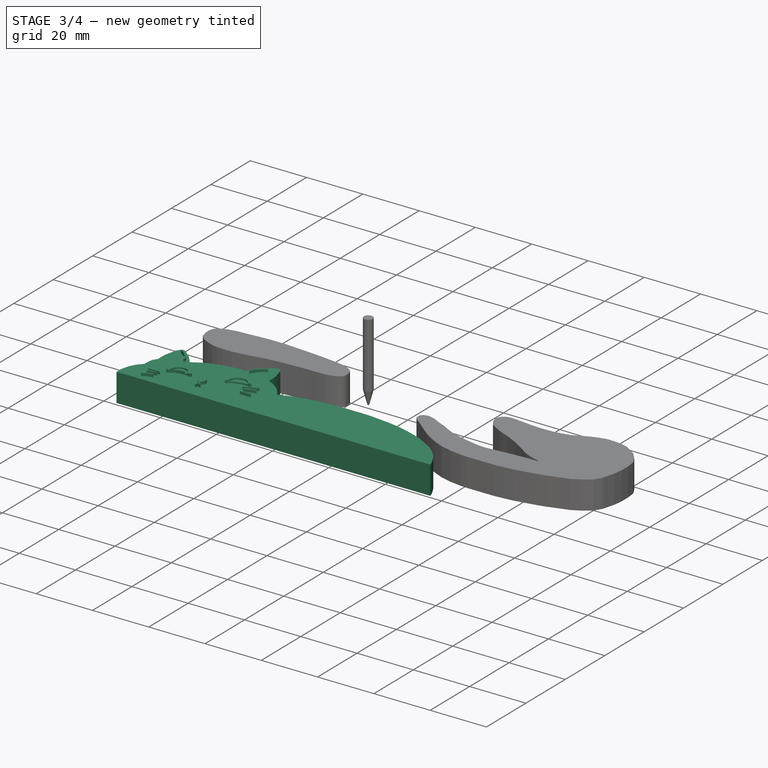
[diagram: stage 3 of 4 — iso view after this stage's code; geometry added in this stage tinted green]
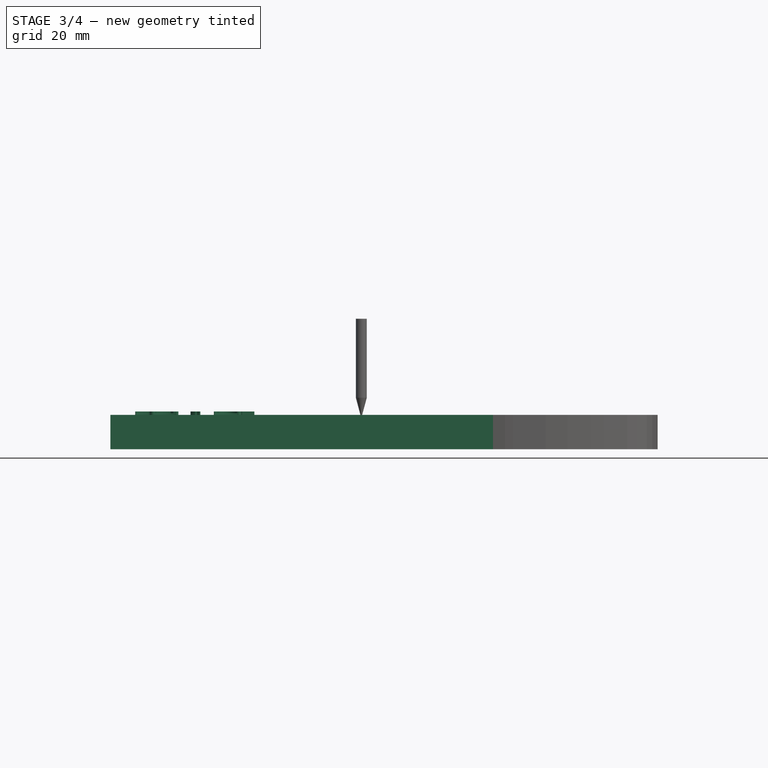
[diagram: stage 3 of 4 — front view after this stage's code; geometry added in this stage tinted green]
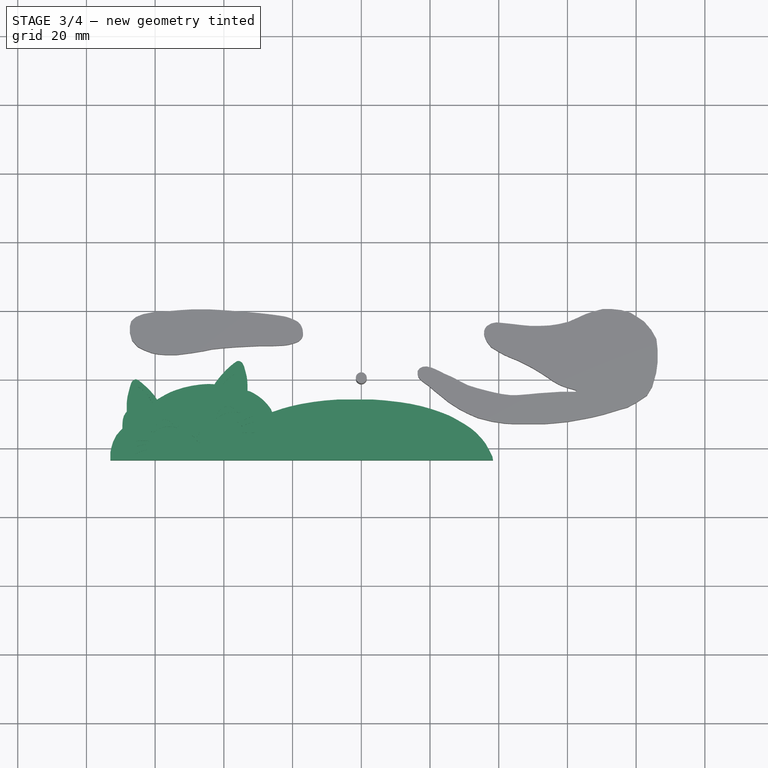
[diagram: stage 3 of 4 — top view after this stage's code; geometry added in this stage tinted green]
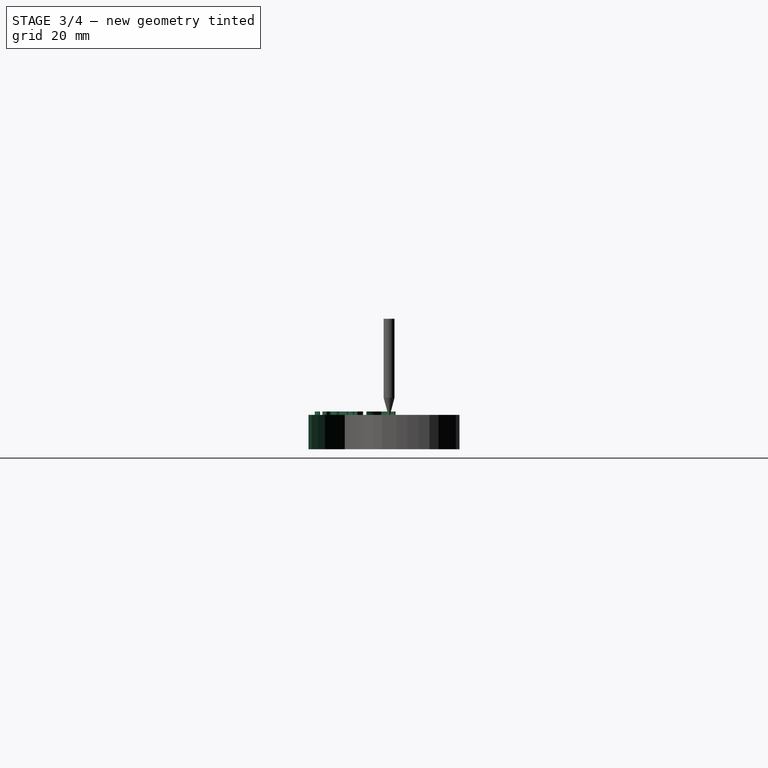
[diagram: stage 3 of 4 — right view after this stage's code; geometry added in this stage tinted green]
FEATURE [Sketcher::SketchObject] Sketch005
  ArcFitTolerance = 1e-06
  AttachmentSupport = -> [Pad004]
  FullyConstrained = false
  MakeInternals = false
  MapMode = 5
  Placement = pos=(0,0,11) rot=(0,0,1;0rad)
  sketch-geometry (4):
    g0: ArcOfCircle CenterX=-126.763 CenterY=99.9882 CenterZ=0 NormalX=0 NormalY=0 NormalZ=1 AngleXU=0 Radius=10.4934 StartAngle=1.34485 EndAngle=2.23408
    g1: ArcOfCircle CenterX=-128.807 CenterY=109.189 CenterZ=0 NormalX=0 NormalY=0 NormalZ=1 AngleXU=0 Radius=4.51358 StartAngle=0.2293 EndAngle=3.34963
    g2: ArcOfCircle CenterX=-94.9239 CenterY=103.347 CenterZ=0 NormalX=0 NormalY=0 NormalZ=1 AngleXU=0 Radius=14.004 StartAngle=1.47089 EndAngle=2.20004
    g3: ArcOfCircle CenterX=-98.1169 CenterY=115.128 CenterZ=0 NormalX=0 NormalY=0 NormalZ=1 AngleXU=0 Radius=5.06964 StartAngle=0.438611 EndAngle=3.23232
  constraints (4):
    c: Coincident(g1,g0)
    c: Coincident(g1,g0)
    c: Coincident(g3,g2)
    c: Coincident(g3,g2)
FEATURE [PartDesign::Pocket] Pocket
  BaseFeature = -> Pad004
  Direction = (0,0,-1)
  Length = 0.5
  Length2 = 5
  Profile = -> Sketch005
  ReferenceAxis = -> Sketch005 [N_Axis]
  Refine = true
  Suppressed = false
  Type = 0
FEATURE [PartDesign::Body] Body001  label="OrigBody"
  AllowCompound = false
  Group = -> [Sketch001,Pad001,Sketch004,Pad004,Sketch005,Pocket]
  Origin = -> Origin001
  Tip = -> Pocket
FEATURE [Part::FeaturePython] Clone  label="OrigBody001"  # Draft clone (typed FeaturePython)
  AttacherType = Attacher::AttachEngine3D
  Fuse = false
  Objects = -> [Body001]
  Placement = pos=(20,-80,-10) rot=(0,0,1;0rad)
  Scale = (0.6,0.6,1)
FEATURE [Part::MultiFuse] Fusion
  Shapes = -> [Clone,Clone001,Clone002]
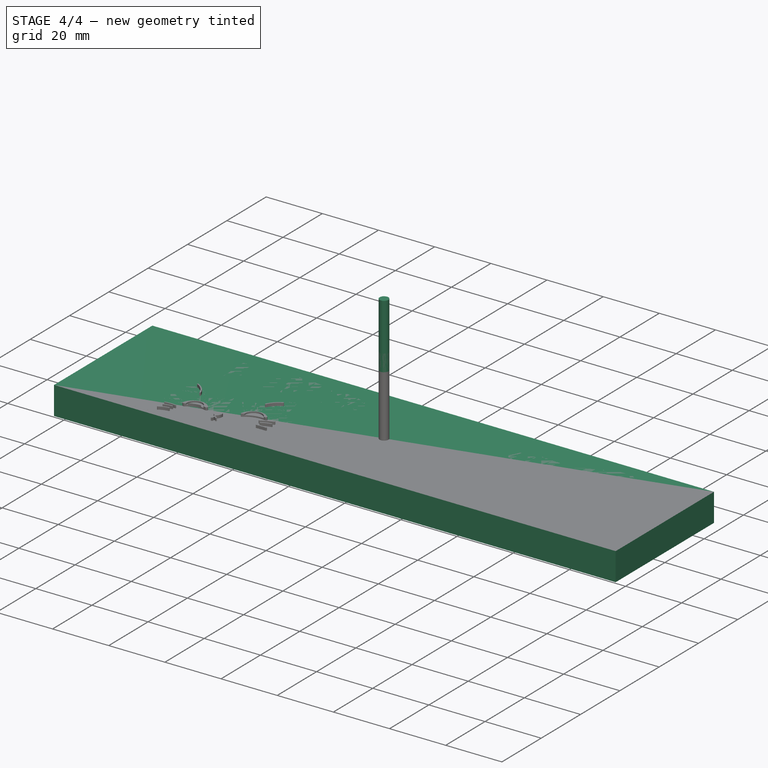
[diagram: stage 4 of 4 — iso view after this stage's code; geometry added in this stage tinted green]
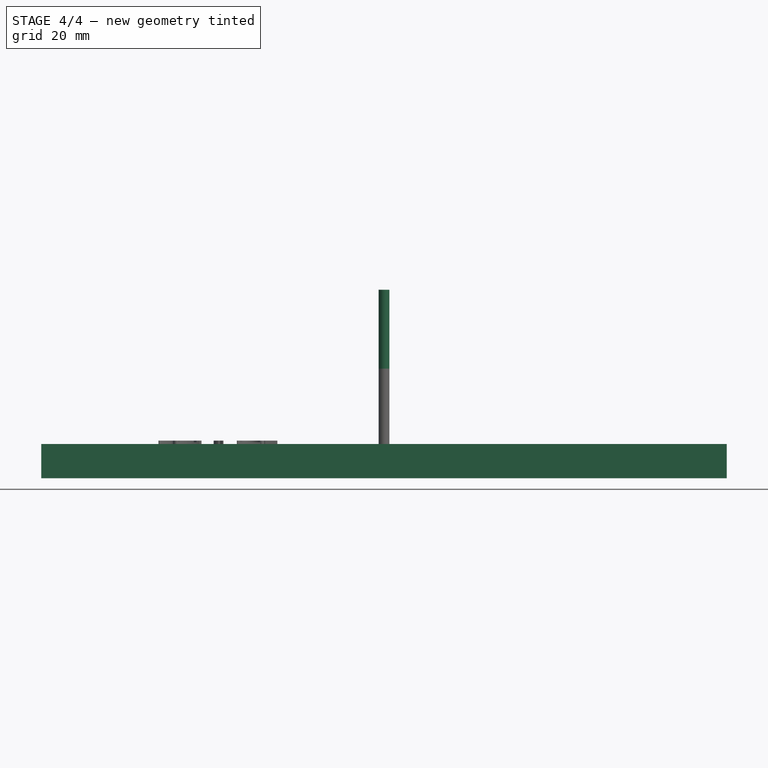
[diagram: stage 4 of 4 — front view after this stage's code; geometry added in this stage tinted green]
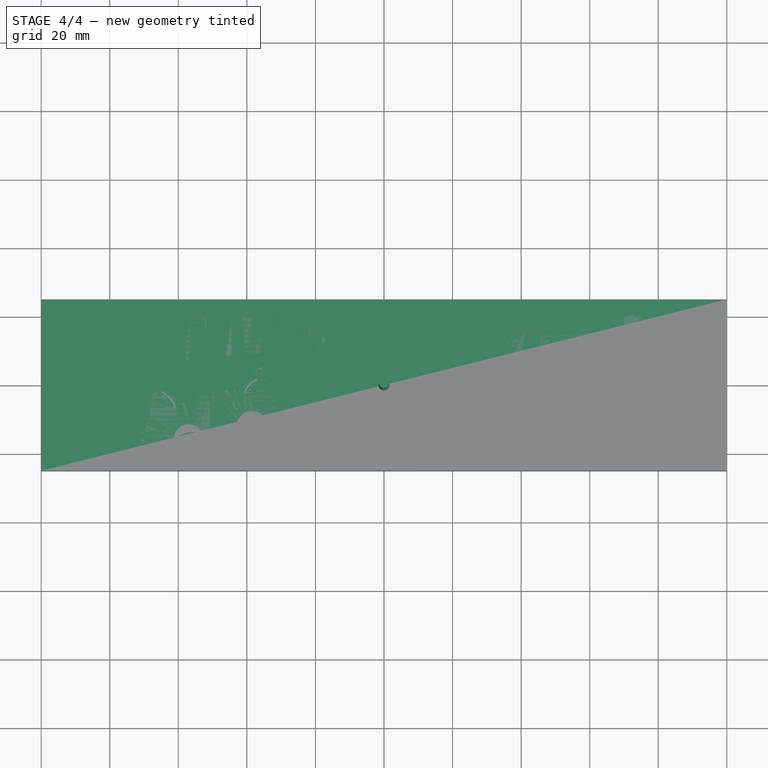
[diagram: stage 4 of 4 — top view after this stage's code; geometry added in this stage tinted green]
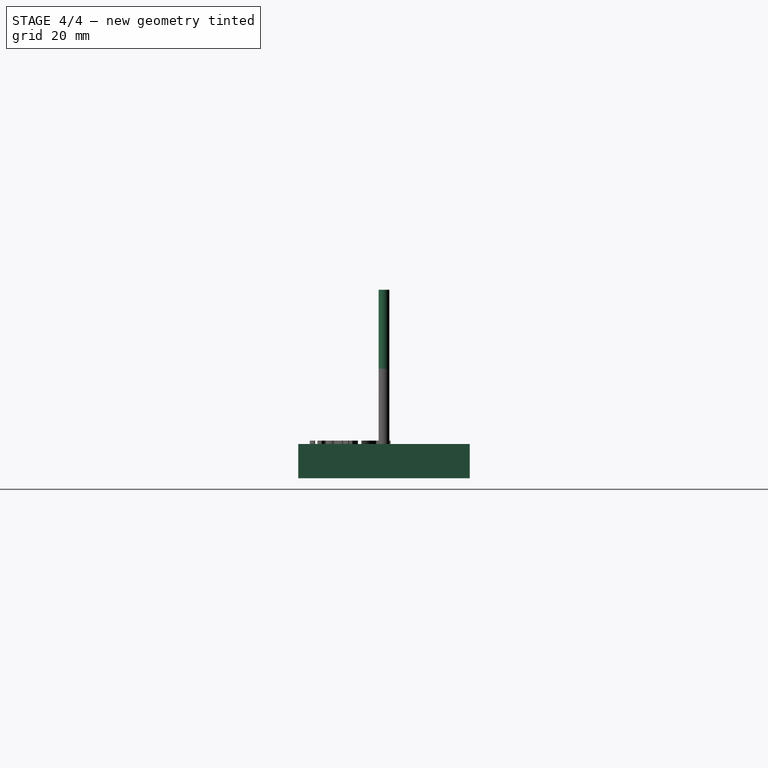
[diagram: stage 4 of 4 — right view after this stage's code; geometry added in this stage tinted green]
FEATURE [Image::ImagePlane] __________________  label="猫咪挂钩参考"
  XSize = 355.026
  YSize = 507.937
FEATURE [Sketcher::SketchObject] Sketch
  ArcFitTolerance = 1e-06
  AttachmentSupport = -> [XY_Plane]
  FullyConstrained = true
  MakeInternals = false
  MapMode = 5
  sketch-geometry (5):
    g0: LineSegment StartX=-100 StartY=-25 StartZ=0 EndX=100 EndY=-25 EndZ=0
    g1: LineSegment StartX=100 StartY=-25 StartZ=0 EndX=100 EndY=25 EndZ=0
    g2: LineSegment StartX=100 StartY=25 StartZ=0 EndX=-100 EndY=25 EndZ=0
    g3: LineSegment StartX=-100 StartY=25 StartZ=0 EndX=-100 EndY=-25 EndZ=0
    g4: GeomPoint [constr] X=0 Y=0 Z=0
  constraints (12):
    c: Coincident(g0,g1)
    c: Coincident(g1,g2)
    c: Coincident(g2,g3)
    c: Coincident(g3,g0)
    c: Horizontal(g0)
    c: Horizontal(g2)
    c: Vertical(g1)
    c: Vertical(g3)
    c: Symmetric(g2,g0,g4)
    c: Distance(g1,g3) = 200
    c: Distance(g0,g2) = 50
    c: Coincident(g4,g-1)
FEATURE [PartDesign::Pad] Pad
  Direction = (0,0,1)
  Length = 10
  Length2 = 10
  Profile = -> Sketch
  ReferenceAxis = -> Sketch [N_Axis]
  Refine = true
  Suppressed = false
  Type = 0
FEATURE [App::TextDocument] Text_document  label="Text document"
  Text = 计划在20厘米长的厚板子上切割猫咪挂钩\n已经描好了身体轮廓并克隆缩放到了一定的尺寸
FEATURE [App::FeaturePython] SetupSheet  # Path/CAM operation (typed FeaturePython)
  ClearanceHeightExpression = OpStockZMax+SetupSheet.ClearanceHeightOffset
  ClearanceHeightOffset = 5
  CoolantMode = 0
  CoolantModes = None | Flood | Mist
  FinalDepthExpression = OpFinalDepth
  HorizRapid = 0
  SafeHeightExpression = OpStockZMax+SetupSheet.SafeHeightOffset
  SafeHeightOffset = 3
  StartDepthExpression = OpStartDepth
  StepDownExpression = OpToolDiameter
  VertRapid = 0
FEATURE [Part::FeaturePython] Clone003  label="Model-Fusion"  # Draft clone (typed FeaturePython)
  AttacherType = Attacher::AttachEngine3D
  Fuse = false
  Objects = -> [Fusion]
  PathResource = Model
  Scale = (1,1,1)
FEATURE [App::DocumentObjectGroup] Model
  Group = -> [Clone003]
FEATURE [Part::FeaturePython] ToolBit001  label="3175mm"  # Path/CAM toolbit (typed FeaturePython)
  BitPropertyNames = Chipload | CuttingEdgeHeight | Diameter | Flutes | Length | Material | ShankDiameter | SpindleDirection
  BitShape = <path>
  Chipload = 0
  CuttingEdgeHeight = 22
  Diameter = 3.17
  File = <userpath>/.local/share/FreeCAD/Macro/Bit/3175.fctb
  Flutes = 0
  Length = 45
  Material = 0
  ShankDiameter = 3.17
  ShapeName = endmill
  SpindleDirection = 0
FEATURE [Path::FeaturePython] _0degree_Vbit  label="30degree_Vbit001"  # Path/CAM operation (typed FeaturePython)
  HorizFeed = 5
  HorizRapid = 0
  SpindleDir = 0
  SpindleSpeed = 10000
  Tool = -> ToolBit
  ToolNumber = 3
  VertFeed = 5
  VertRapid = 0
  expr: HorizRapid = SetupSheet.HorizRapid
  expr: VertRapid = SetupSheet.VertRapid
FEATURE [App::DocumentObjectGroup] Tools
  Group = -> [_175mm,_0degree_Vbit]
FEATURE [Path::FeaturePython] Profile002  # Path/CAM operation (typed FeaturePython)
  Active = true
  AreaParams:
    Tolerance = 1e-07
    FitArcs = True
    Simplify = False
    CleanDistance = 0.0
    Accuracy = 0.01
    Unit = 1.0
    MinArcPoints = 4
    MaxArcPoints = 100
    ClipperScale = 10000000.0
    Fill = 0
    Coplanar = 0
    Reorient = True
    Outline = False
    Explode = False
    OpenMode = 0
    Deflection = 0.01
    SubjectFill = 0
    ClipFill = 0
    Offset = 1.585
    ExtraPass = 0
    Stepover = 0.0
    LastStepover = 0.0
    JoinType = 0
    EndType = 0
    MiterLimit = 2.0
    RoundPrecision = 0.0
    PocketMode = 0
    ToolRadius = 1.0
    PocketExtraOffset = 0.0
    PocketStepover = 0.0
    PocketLastStepover = 0.0
    FromCenter = False
    Angle = 45.0
    AngleShift = 0.0
    Shift = 0.0
    Thicken = False
    SectionCount = -1
    Stepdown = 1.0
    SectionOffset = 0.0
    SectionTolerance = 1e-06
    SectionMode = 2
    Project = False
  Base = -> [Clone003]
  ClearanceHeight = 5
  CoolantMode = 0
  CycleTime = 00:11:48
  Direction = 1
  FinalDepth = -10.5
  HandleMultipleFeatures = 0
  JoinType = 0
  MiterLimit = 0.1
  OffsetExtra = 0
  OpFinalDepth = -10
  OpStartDepth = 1
  OpStockZMax = 0
  OpStockZMin = -10
  OpToolDiameter = 3.17
  PathParams = {'orientation': 0, 'feedrate': 5.0, 'feedrate_v': 5.0, 'verbose': True, 'resume_height': 3.0, 'retraction': 5.0, 'return_end': True, 'preamble': False, 'start': Vector (-13.761186888066211, -4.908288975432541, 5.0)}
  SafeHeight = 3
  Side = 0
  SplitArcs = false
  StartDepth = 0.5
  StartPoint = (0,0,0)
  StepDown = 2
  ToolController = -> _175mm
  UseComp = true
  UseStartPoint = true
  processCircles = false
  processHoles = false
  processPerimeter = true
  expr: ClearanceHeight = OpStockZMax + SetupSheet.ClearanceHeightOffset
  expr: FinalDepth = -10.5
  expr: SafeHeight = OpStockZMax + SetupSheet.SafeHeightOffset
  expr: StartDepth = 0.5
  expr: StepDown = 2
FEATURE [Part::FeaturePython] Clone022  label="Stock-BasePanel"  # Draft clone (typed FeaturePython)
  AttacherType = Attacher::AttachEngine3D
  Fuse = false
  Objects = -> [Body]
  PathResource = Stock
  Placement = pos=(0,0,-10) rot=(0,0,1;0rad)
  Scale = (1,1,1)
  StockType = Unknown
FEATURE [Path::FeaturePython] Profile001  # Path/CAM operation (typed FeaturePython)
  Active = true
  AreaParams:
    Tolerance = 1e-07
    FitArcs = True
    Simplify = False
    CleanDistance = 0.0
    Accuracy = 0.01
    Unit = 1.0
    MinArcPoints = 4
    MaxArcPoints = 100
    ClipperScale = 10000000.0
    Fill = 0
    Coplanar = 0
    Reorient = True
    Outline = False
    Explode = False
    OpenMode = 0
    Deflection = 0.01
    SubjectFill = 0
    ClipFill = 0
    Offset = 0.0
    ExtraPass = 0
    Stepover = 0.0
    LastStepover = 0.0
    JoinType = 0
    EndType = 0
    MiterLimit = 2.0
    RoundPrecision = 0.0
    PocketMode = 0
    ToolRadius = 1.0
    PocketExtraOffset = 0.0
    PocketStepover = 0.0
    PocketLastStepover = 0.0
    FromCenter = False
    Angle = 45.0
    AngleShift = 0.0
    Shift = 0.0
    Thicken = False
    SectionCount = -1
    Stepdown = 1.0
    SectionOffset = 0.0
    SectionTolerance = 1e-06
    SectionMode = 2
    Project = False
  Base = -> [Clone003]
  ClearanceHeight = 5
  CoolantMode = 0
  CycleTime = 00:00:17
  Direction = 0
  FinalDepth = -0.1
  HandleMultipleFeatures = 0
  JoinType = 0
  MiterLimit = 0.1
  OffsetExtra = 0
  OpFinalDepth = 0.5
  OpStartDepth = 1
  OpStockZMax = 0
  OpStockZMin = -10
  OpToolDiameter = 3.17
  PathParams = {'orientation': 0, 'feedrate': 5.0, 'feedrate_v': 5.0, 'verbose': True, 'resume_height': 3.0, 'retraction': 5.0, 'return_end': True, 'preamble': False, 'start': Vector (-36.83182377507369, -8.665206616903472, 5.0)}
  SafeHeight = 3
  Side = 1
  SplitArcs = false
  StartDepth = 1
  StartPoint = (0,0,0)
  StepDown = 2
  ToolController = -> _0degree_Vbit
  UseComp = false
  UseStartPoint = false
  processCircles = false
  processHoles = false
  processPerimeter = true
  expr: ClearanceHeight = OpStockZMax + SetupSheet.ClearanceHeightOffset
  expr: FinalDepth = -0.1
  expr: SafeHeight = OpStockZMax + SetupSheet.SafeHeightOffset
  expr: StartDepth = 1
  expr: StepDown = 2
FEATURE [Path::FeaturePython] Profile  # Path/CAM operation (typed FeaturePython)
  Active = true
  AreaParams:
    Tolerance = 1e-07
    FitArcs = True
    Simplify = False
    CleanDistance = 0.0
    Accuracy = 0.01
    Unit = 1.0
    MinArcPoints = 4
    MaxArcPoints = 100
    ClipperScale = 10000000.0
    Fill = 0
    Coplanar = 0
    Reorient = True
    Outline = False
    Explode = False
    OpenMode = 0
    Deflection = 0.01
    SubjectFill = 0
    ClipFill = 0
    Offset = 0.0
    ExtraPass = 0
    Stepover = 0.0
    LastStepover = 0.0
    JoinType = 0
    EndType = 0
    MiterLimit = 2.0
    RoundPrecision = 0.0
    PocketMode = 0
    ToolRadius = 1.0
    PocketExtraOffset = 0.0
    PocketStepover = 0.0
    PocketLastStepover = 0.0
    FromCenter = False
    Angle = 45.0
    AngleShift = 0.0
    Shift = 0.0
    Thicken = False
    SectionCount = -1
    Stepdown = 1.0
    SectionOffset = 0.0
    SectionTolerance = 1e-06
    SectionMode = 2
    Project = False
  Base = -> [Clone003]
  ClearanceHeight = 5
  CoolantMode = 0
  CycleTime = 00:00:53
  Direction = 0
  FinalDepth = -0.1
  HandleMultipleFeatures = 0
  JoinType = 0
  MiterLimit = 0.1
  OffsetExtra = 0
  OpFinalDepth = 0
  OpStartDepth = 1
  OpStockZMax = 0
  OpStockZMin = -10
  OpToolDiameter = 3.17
  PathParams = {'orientation': 0, 'feedrate': 5.0, 'feedrate_v': 5.0, 'verbose': True, 'resume_height': 3.0, 'retraction': 5.0, 'return_end': True, 'preamble': False, 'start': Vector (-62.212795639966984, -20.115268604511783, 5.0)}
  SafeHeight = 3
  Side = 1
  SplitArcs = false
  StartDepth = 0.5
  StartPoint = (0,0,0)
  StepDown = 2
  ToolController = -> _0degree_Vbit
  UseComp = false
  UseStartPoint = true
  processCircles = false
  processHoles = false
  processPerimeter = true
  expr: ClearanceHeight = OpStockZMax + SetupSheet.ClearanceHeightOffset
  expr: FinalDepth = -0.1
  expr: SafeHeight = OpStockZMax + SetupSheet.SafeHeightOffset
  expr: StartDepth = 0.5
  expr: StepDown = 2
FEATURE [App::DocumentObjectGroup] Operations
  Group = -> [Profile,Profile001,Profile002]
FEATURE [Path::FeaturePython] Job  # Path/CAM operation (typed FeaturePython)
  CycleTime = 00:12:58
  Fixtures = G54
  GeometryTolerance = 0.01
  JobType = 0
  Model = -> Model
  Operations = -> Operations
  OrderOutputBy = 0
  PostProcessor = 11
  PostProcessorOutputFile = %D%d.nc
  SetupSheet = -> SetupSheet
  SplitOutput = false
  Stock = -> Clone022
  Tools = -> Tools
note: 2 file-system paths scrubbed to <path> (originals preserved in the JSON sidecar)
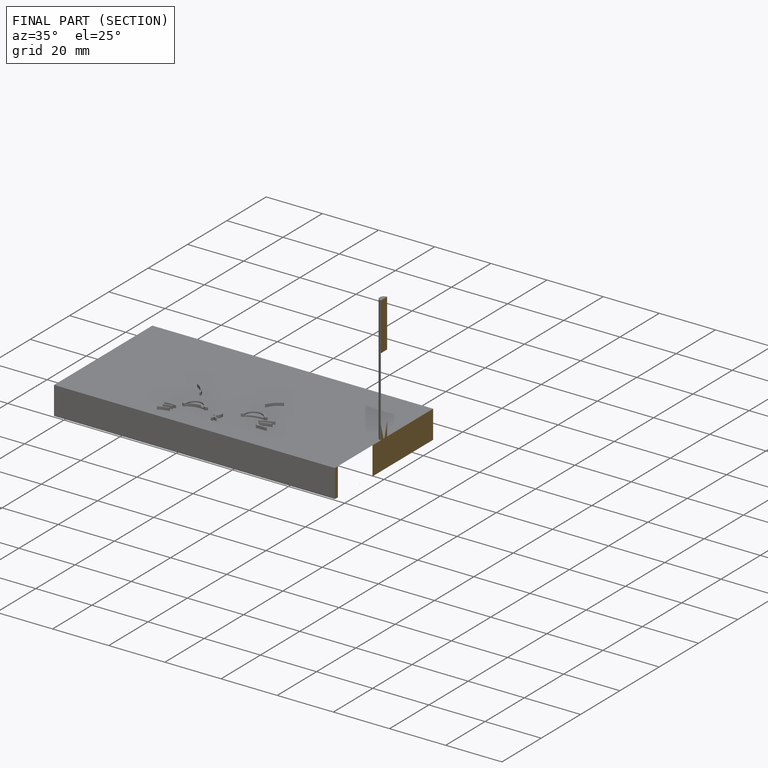
[diagram: finished part — half-section view (interior)]
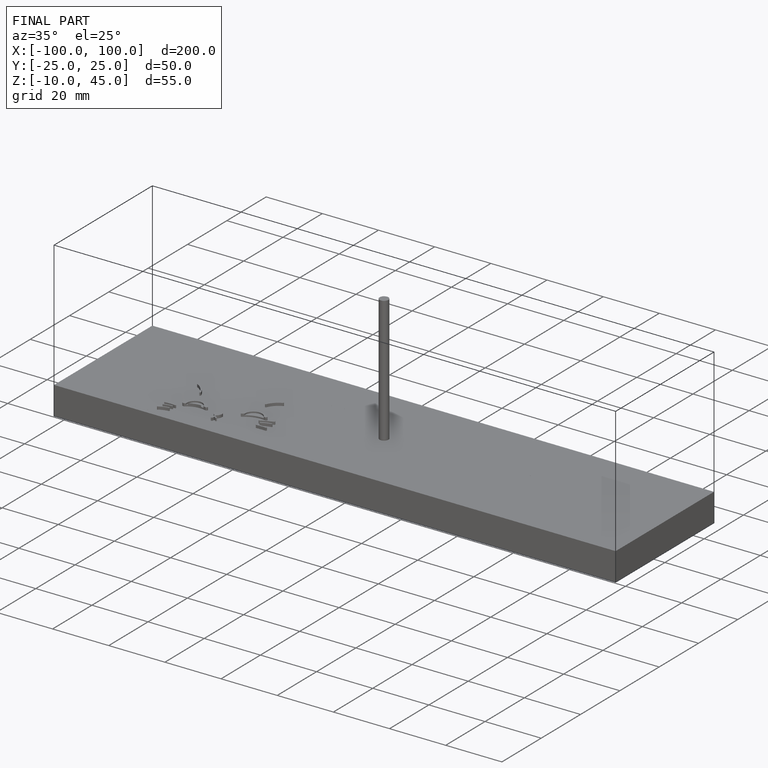
[diagram: finished part — iso view with bounding-box wireframe]
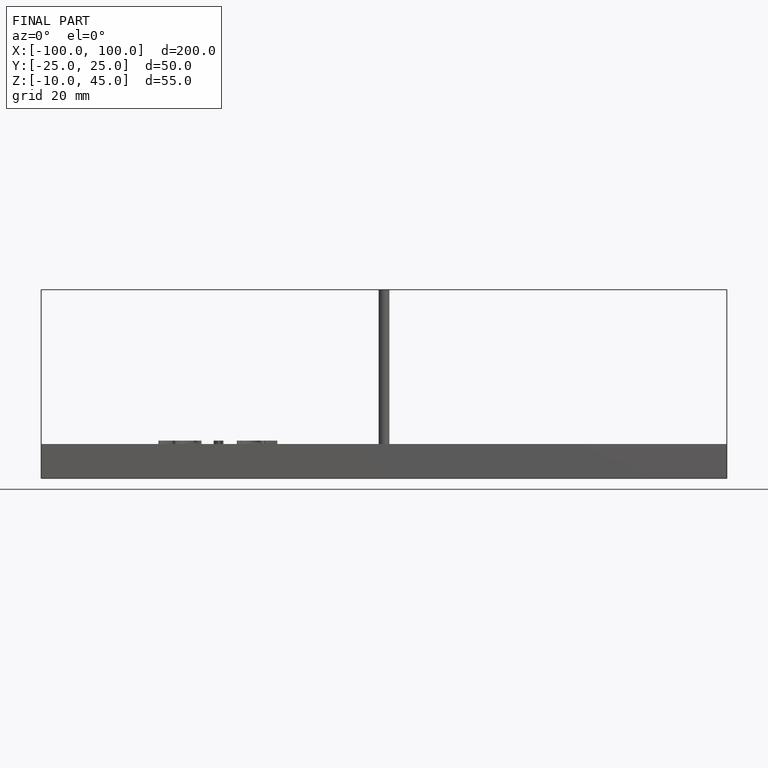
[diagram: finished part — front view with bounding-box wireframe]
